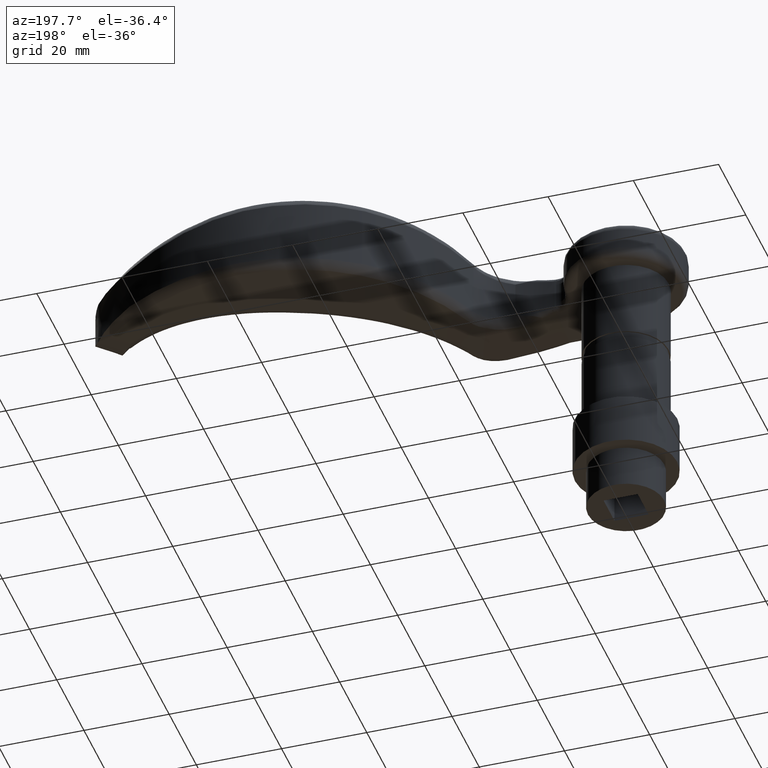
[diagram: clean part render]
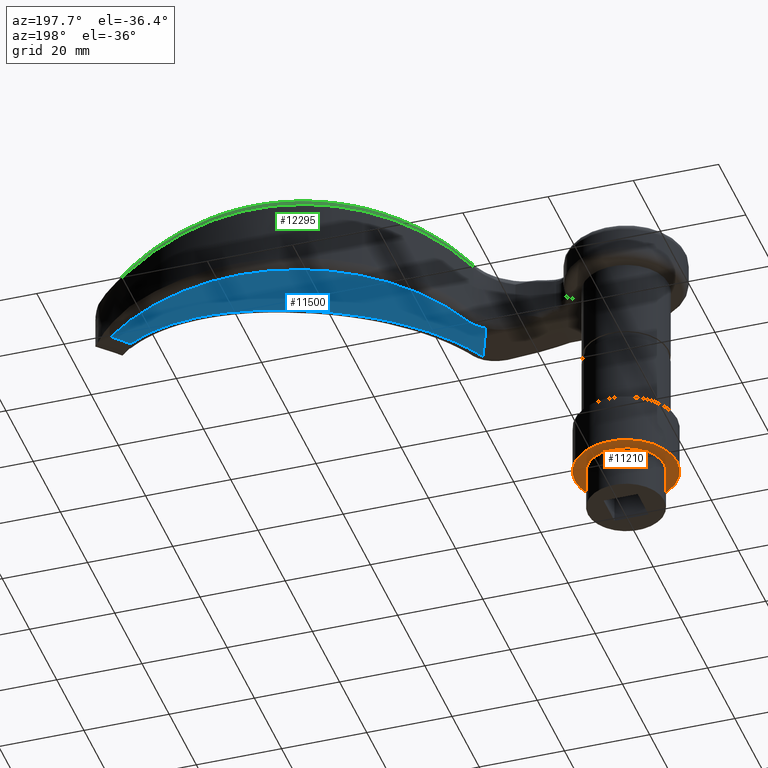
[diagram: same view with three faces highlighted in distinct colors, each labeled with its STEP entity id]
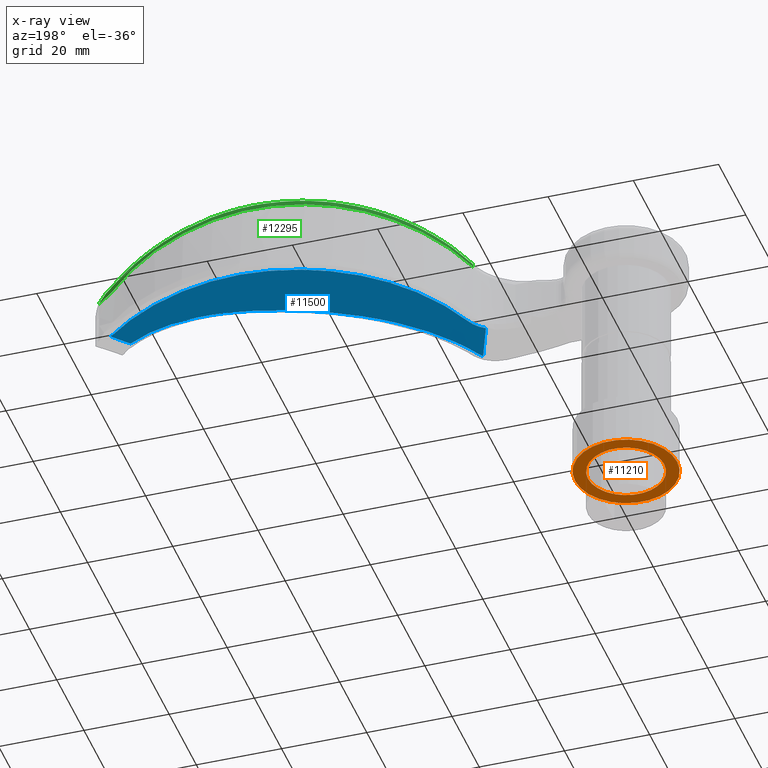
[diagram: x-ray of the same camera — body ghosted, the three highlighted faces saturated]
A machine part, auxiliary view with three faces highlighted in distinct colors.
The next image is the same camera in x-ray (body ghosted, the three faces saturated) — at least one of them is partly hidden behind the body in this view.
Their STEP definitions:

[orange] entity #11210 — the highlighted planar face has unit normal (0, 0, -1).
#1031 = CARTESIAN_POINT ( 'NONE',  ( 0.000000000000000000, 0.000000000000000000, -49.99999999999999289 ) ) ;
#1483 = AXIS2_PLACEMENT_3D ( 'NONE', #8127, #2448, #11358 ) ;
#1785 = EDGE_CURVE ( 'NONE', #1965, #1965, #8510, .T. ) ;
#1965 = VERTEX_POINT ( 'NONE', #5783 ) ;
#2448 = DIRECTION ( 'NONE',  ( 0.000000000000000000, 0.000000000000000000, -1.000000000000000000 ) ) ;
#2647 = EDGE_LOOP ( 'NONE', ( #12379 ) ) ;
#2908 = AXIS2_PLACEMENT_3D ( 'NONE', #3174, #9844, #4185 ) ;
#3174 = CARTESIAN_POINT ( 'NONE',  ( 0.000000000000000000, 0.000000000000000000, -49.99999999999999289 ) ) ;
#3524 = CIRCLE ( 'NONE', #9095, 12.00000000000000178 ) ;
#4185 = DIRECTION ( 'NONE',  ( -1.000000000000000000, 0.000000000000000000, 0.000000000000000000 ) ) ;
#4411 = DIRECTION ( 'NONE',  ( 0.000000000000000000, 0.000000000000000000, -1.000000000000000000 ) ) ;
#4593 = EDGE_LOOP ( 'NONE', ( #12224 ) ) ;
#5783 = CARTESIAN_POINT ( 'NONE',  ( -8.949999999999999289, 0.000000000000000000, -49.99999999999999289 ) ) ;
#5953 = FACE_BOUND ( 'NONE', #2647, .T. ) ;
#6595 = DIRECTION ( 'NONE',  ( -1.000000000000000000, 0.000000000000000000, 0.000000000000000000 ) ) ;
#8127 = CARTESIAN_POINT ( 'NONE',  ( 0.000000000000000000, 0.000000000000000000, -49.99999999999999289 ) ) ;
#8510 = CIRCLE ( 'NONE', #2908, 8.949999999999999289 ) ;
#9095 = AXIS2_PLACEMENT_3D ( 'NONE', #1031, #4411, #6595 ) ;
#9266 = VERTEX_POINT ( 'NONE', #10387 ) ;
#9844 = DIRECTION ( 'NONE',  ( -0.000000000000000000, -0.000000000000000000, 1.000000000000000000 ) ) ;
#10387 = CARTESIAN_POINT ( 'NONE',  ( -12.00000000000000178, 0.000000000000000000, -49.99999999999999289 ) ) ;
#10585 = EDGE_CURVE ( 'NONE', #9266, #9266, #3524, .T. ) ;
#11210 = ADVANCED_FACE ( 'NONE', ( #5953, #13789 ), #11564, .T. ) ;
#11358 = DIRECTION ( 'NONE',  ( -1.000000000000000000, 0.000000000000000000, -0.000000000000000000 ) ) ;
#11564 = PLANE ( 'NONE',  #1483 ) ;
#12224 = ORIENTED_EDGE ( 'NONE', *, *, #10585, .T. ) ;
#12379 = ORIENTED_EDGE ( 'NONE', *, *, #1785, .T. ) ;
#13789 = FACE_OUTER_BOUND ( 'NONE', #4593, .T. ) ;

[blue] entity #11500 — the highlighted face is a freeform B-spline surface patch.
#60 = CARTESIAN_POINT ( 'NONE',  ( 53.80143678603266011, 33.28677804258871475, -5.783616058190851561 ) ) ;
#112 = CARTESIAN_POINT ( 'NONE',  ( 106.8857709191473191, 23.35235438731543667, -3.071298534846667483 ) ) ;
#174 = CARTESIAN_POINT ( 'NONE',  ( 36.78898638079696326, -7.238713532125136574, -4.152122600166641142 ) ) ;
#175 = CARTESIAN_POINT ( 'NONE',  ( 36.22625459383385760, -8.360639240379404313, -4.005141152307341024 ) ) ;
#202 = CARTESIAN_POINT ( 'NONE',  ( 33.02625248942131009, -1.468245048221411109, -3.084107936373133629 ) ) ;
#252 = CARTESIAN_POINT ( 'NONE',  ( 35.25791039069285659, -6.498116262911771912, -3.726649200762891745 ) ) ;
#254 = B_SPLINE_CURVE_WITH_KNOTS ( 'NONE', 3,
 ( #11949, #5313, #973, #7575, #5362, #5264 ),
 .UNSPECIFIED., .F., .F.,
 ( 4, 2, 4 ),
 ( -5.999999997828032286E-08, 0.002754433982285785839, 0.005508927964571550505 ),
 .UNSPECIFIED. ) ;
#266 = B_SPLINE_CURVE_WITH_KNOTS ( 'NONE', 3,
 ( #10453, #12683, #446, #11530, #8195, #492, #1557 ),
 .UNSPECIFIED., .F., .F.,
 ( 4, 3, 4 ),
 ( 0.000000000000000000, 8.579646741729051446E-06, 8.639644981565973704E-06 ),
 .UNSPECIFIED. ) ;
#282 = CARTESIAN_POINT ( 'NONE',  ( 110.6817947447659662, 17.64943600805470680, -2.107710271270538449 ) ) ;
#305 = CARTESIAN_POINT ( 'NONE',  ( 31.96918174544076408, 1.190719821539620416, -2.778177117272663477 ) ) ;
#337 = VERTEX_POINT ( 'NONE', #8194 ) ;
#356 = CARTESIAN_POINT ( 'NONE',  ( 90.09007446574757694, 41.18344798747980917, -3.932655828050937163 ) ) ;
#446 = CARTESIAN_POINT ( 'NONE',  ( 32.83403778645849513, 0.2053755358448031143, -3.017371953356337233 ) ) ;
#460 = CARTESIAN_POINT ( 'NONE',  ( 52.03969117324987792, 38.72738669489172736, -5.121333597759719858 ) ) ;
#492 = CARTESIAN_POINT ( 'NONE',  ( 32.83599184510649138, 0.2074585996096204310, -3.017873763770368978 ) ) ;
#493 = CARTESIAN_POINT ( 'NONE',  ( 109.2305003822540215, 18.80847725400183990, -2.358236010258814019 ) ) ;
#506 = CARTESIAN_POINT ( 'NONE',  ( 32.51023172689635032, -0.7691908008999573942, -2.940404765013902466 ) ) ;
#609 = CARTESIAN_POINT ( 'NONE',  ( 67.64100593253282057, 37.07064051255001402, -4.868902237831512103 ) ) ;
#635 = CARTESIAN_POINT ( 'NONE',  ( 82.81248540371996114, 26.57157411399421321, -5.746426720361963447 ) ) ;
#654 = CARTESIAN_POINT ( 'NONE',  ( 53.59928969019259881, 30.66711142865046114, -4.857236047301258353 ) ) ;
#793 = CARTESIAN_POINT ( 'NONE',  ( 32.83334285139193298, 0.1979408911781884439, -3.017257620139870422 ) ) ;
#847 = CARTESIAN_POINT ( 'NONE',  ( 95.86003751288018293, 33.64888057109101993, -3.405240683676297397 ) ) ;
#853 = ORIENTED_EDGE ( 'NONE', *, *, #3928, .T. ) ;
#871 = CARTESIAN_POINT ( 'NONE',  ( 69.92447327937900070, 23.99592800055272335, -6.444150640309663558 ) ) ;
#946 = CARTESIAN_POINT ( 'NONE',  ( 76.88473112048400537, 38.15767147261603043, -4.588826857023864392 ) ) ;
#973 = CARTESIAN_POINT ( 'NONE',  ( 34.01597870232341592, 1.592635090289161504, -3.310468908854307557 ) ) ;
#991 = CARTESIAN_POINT ( 'NONE',  ( 94.91523008939196870, 34.07180909494451271, -3.481710947599037542 ) ) ;
#1184 = CARTESIAN_POINT ( 'NONE',  ( 32.93744703573587884, -1.841263790390742727, -3.063661904559700666 ) ) ;
#1235 = CARTESIAN_POINT ( 'NONE',  ( 35.35010379607246733, -6.146360025445319231, -3.749999999999996003 ) ) ;
#1285 = CARTESIAN_POINT ( 'NONE',  ( 91.00962121949832806, 29.90232913247080404, -5.267597069692061318 ) ) ;
#1311 = CARTESIAN_POINT ( 'NONE',  ( 36.63140000772155958, -7.629030676129945121, -4.113046157183760876 ) ) ;
#1332 = CARTESIAN_POINT ( 'NONE',  ( 33.20386339679215837, -0.7222075638827479827, -3.124999999999999112 ) ) ;
#1378 = CARTESIAN_POINT ( 'NONE',  ( 115.2200157495127968, 9.141290610166548092, -1.000000000000001776 ) ) ;
#1408 = EDGE_CURVE ( 'NONE', #8558, #11851, #8845, .T. ) ;
#1427 = CARTESIAN_POINT ( 'NONE',  ( 32.59835959024293572, -0.3919195577900497773, -2.960269843342601792 ) ) ;
#1525 = CARTESIAN_POINT ( 'NONE',  ( 122.8133221852572490, 15.23357345669758089, -0.4591552877152794698 ) ) ;
#1557 = CARTESIAN_POINT ( 'NONE',  ( 32.83600543149478312, 0.2074728617780234041, -3.017877224570012284 ) ) ;
#1620 = B_SPLINE_CURVE_WITH_KNOTS ( 'NONE', 3,
 ( #13302, #10005, #13209, #2271 ),
 .UNSPECIFIED., .F., .F.,
 ( 4, 4 ),
 ( 0.000000000000000000, 1.000000000000000000 ),
 .UNSPECIFIED. ) ;
#1625 = CARTESIAN_POINT ( 'NONE',  ( 32.14344480139850901, 1.957768144532834764, -2.816198794718757448 ) ) ;
#1712 = CARTESIAN_POINT ( 'NONE',  ( 92.15003221865246985, 25.98236045336460975, -4.802269132641948879 ) ) ;
#1761 = CARTESIAN_POINT ( 'NONE',  ( 80.94577242866236588, 26.43489273890062918, -5.893896870114044617 ) ) ;
#1780 = CARTESIAN_POINT ( 'NONE',  ( 57.10706576687962155, 32.92394151293849092, -4.915699885130181634 ) ) ;
#1810 = CARTESIAN_POINT ( 'NONE',  ( 88.41354257798671767, 26.48947862761229999, -5.221447245400153037 ) ) ;
#1855 = CARTESIAN_POINT ( 'NONE',  ( 58.87254699947988001, 18.80011899213601367, -6.436302294787502376 ) ) ;
#1896 = CARTESIAN_POINT ( 'NONE',  ( 38.20539922822035805, -3.730477340450205403, -4.503348247361894430 ) ) ;
#2035 = CARTESIAN_POINT ( 'NONE',  ( 61.33752133495252679, 20.22260993743990198, -6.487013208974606648 ) ) ;
#2271 = CARTESIAN_POINT ( 'NONE',  ( 110.6817947447659662, 17.64943600805470680, -2.107710271270538449 ) ) ;
#2349 = CARTESIAN_POINT ( 'NONE',  ( 37.20960012413120666, -12.56199368529859761, -4.296233300017661350 ) ) ;
#2389 = CARTESIAN_POINT ( 'NONE',  ( 118.7299448767052183, 11.95738675946375018, -0.7500000000000013323 ) ) ;
#2392 = CARTESIAN_POINT ( 'NONE',  ( 32.83600543149478312, 0.2074728617780234041, -3.017877224570012284 ) ) ;
#2481 = VERTEX_POINT ( 'NONE', #175 ) ;
#2483 = CARTESIAN_POINT ( 'NONE',  ( 35.16571698531324586, -6.849872500378224593, -3.703298401525787931 ) ) ;
#2536 = CARTESIAN_POINT ( 'NONE',  ( 32.35383497324438196, 1.426053072498478125, -2.877465863145838298 ) ) ;
#2603 = ORIENTED_EDGE ( 'NONE', *, *, #3797, .T. ) ;
#2632 = CARTESIAN_POINT ( 'NONE',  ( 89.93983997539037034, 43.02654420301013261, -3.714554664323579836 ) ) ;
#2633 = VERTEX_POINT ( 'NONE', #282 ) ;
#2639 = ORIENTED_EDGE ( 'NONE', *, *, #7906, .T. ) ;
#2718 = CARTESIAN_POINT ( 'NONE',  ( 93.99160467665649321, 25.61991320077343559, -4.580432055818978831 ) ) ;
#2782 = CARTESIAN_POINT ( 'NONE',  ( 46.69233498691474438, 24.46691643484684420, -4.610872301467924039 ) ) ;
#2886 = CARTESIAN_POINT ( 'NONE',  ( 56.21042264975761071, 32.39521426354608735, -4.904574657597331466 ) ) ;
#2953 = CARTESIAN_POINT ( 'NONE',  ( 66.41980534950661763, 22.67756729482584177, -6.504959886034667349 ) ) ;
#2973 = CARTESIAN_POINT ( 'NONE',  ( 38.66160521345202028, 12.50208988239909225, -4.019395635703052250 ) ) ;
#3001 = CARTESIAN_POINT ( 'NONE',  ( 74.43819283594986302, 25.28047535925287193, -6.279446090189373386 ) ) ;
#3102 = LINE ( 'NONE', #9669, #8320 ) ;
#3214 = CARTESIAN_POINT ( 'NONE',  ( 92.05422204781072537, 35.25743144131701712, -3.704884203771570128 ) ) ;
#3435 = CARTESIAN_POINT ( 'NONE',  ( 114.3319705602834944, 20.75617849578499730, -1.499867853793391603 ) ) ;
#3451 = CARTESIAN_POINT ( 'NONE',  ( 58.34444256807924489, 19.25710407267751023, -7.491440970741083838 ) ) ;
#3495 = CARTESIAN_POINT ( 'NONE',  ( 37.63681543297075649, -13.63406667478938061, -4.419490439563459105 ) ) ;
#3549 = CARTESIAN_POINT ( 'NONE',  ( 37.92559227520862208, -12.65534297932039287, -4.499999999999988454 ) ) ;
#3598 = CARTESIAN_POINT ( 'NONE',  ( 36.35516950645208567, -10.41784770631701917, -4.049719020926071167 ) ) ;
#3648 = CARTESIAN_POINT ( 'NONE',  ( 32.56422514509024779, 0.8943380004641217074, -2.938732931572919149 ) ) ;
#3697 = CARTESIAN_POINT ( 'NONE',  ( 32.68648745358952823, -0.01464831468014226798, -2.980134921671300674 ) ) ;
#3741 = CARTESIAN_POINT ( 'NONE',  ( 109.4134132785063258, 32.37160194551164238, -2.076643797948725112 ) ) ;
#3785 = CARTESIAN_POINT ( 'NONE',  ( 32.30083789041818676, -0.2437286472523003955, -2.879991936192474178 ) ) ;
#3797 = EDGE_CURVE ( 'NONE', #2481, #10124, #3102, .T. ) ;
#3828 = CARTESIAN_POINT ( 'NONE',  ( 52.79187994557793218, 36.40448336923565620, -5.404099410957467597 ) ) ;
#3928 = EDGE_CURVE ( 'NONE', #11851, #2633, #1620, .T. ) ;
#3937 = CARTESIAN_POINT ( 'NONE',  ( 68.65991888955120714, 37.29737204167058451, -4.848458718786269550 ) ) ;
#4032 = CARTESIAN_POINT ( 'NONE',  ( 35.60722667986118495, 4.837881200208356880, -3.628822409214147893 ) ) ;
#4080 = CARTESIAN_POINT ( 'NONE',  ( 45.33416264009015606, 22.89525097339399906, -4.538180475353335019 ) ) ;
#4103 = CARTESIAN_POINT ( 'NONE',  ( 48.59539291550238715, 10.67180443052535921, -5.873933352852524159 ) ) ;
#4202 = CARTESIAN_POINT ( 'NONE',  ( 43.08946663943556388, 4.224462778923848028, -5.285543816306450537 ) ) ;
#4223 = CARTESIAN_POINT ( 'NONE',  ( 114.3319705602834944, 20.75617849578499730, -1.499867853793391603 ) ) ;
#4230 = EDGE_CURVE ( 'NONE', #10124, #8360, #6254, .T. ) ;
#4559 = CARTESIAN_POINT ( 'NONE',  ( 37.49634419535258445, -11.57051248700787838, -4.374999999999989342 ) ) ;
#4654 = CARTESIAN_POINT ( 'NONE',  ( 56.83010730739712812, 23.93366206264789753, -6.922165999891011445 ) ) ;
#4703 = CARTESIAN_POINT ( 'NONE',  ( 122.5265980945773947, 15.00352818272927458, -0.4795776438576399014 ) ) ;
#4853 = CARTESIAN_POINT ( 'NONE',  ( 32.26637133347627184, 1.044613217130771154, -2.858170277887574162 ) ) ;
#4903 = CARTESIAN_POINT ( 'NONE',  ( 109.1767673512789969, 31.52719126636645441, -2.169766542000219456 ) ) ;
#4936 = CARTESIAN_POINT ( 'NONE',  ( 77.20884679005114037, 25.88037631909451264, -6.136673357308034760 ) ) ;
#5077 = CARTESIAN_POINT ( 'NONE',  ( 104.4580236033610987, 21.76052910357667258, -3.122694983149325587 ) ) ;
#5097 = CARTESIAN_POINT ( 'NONE',  ( 70.71119899131956288, 37.68121899483785597, -4.800250517720559884 ) ) ;
#5119 = CARTESIAN_POINT ( 'NONE',  ( 64.70050768562950338, 21.92807343575009682, -6.513923350285080183 ) ) ;
#5143 = CARTESIAN_POINT ( 'NONE',  ( 44.67631860869868632, 22.08092161014304367, -4.499513868876293898 ) ) ;
#5163 = CARTESIAN_POINT ( 'NONE',  ( 47.93839000795202310, 9.998597247877999195, -5.815882029487449145 ) ) ;
#5210 = VERTEX_POINT ( 'NONE', #2392 ) ;
#5236 = CARTESIAN_POINT ( 'NONE',  ( 81.02189849522328302, 37.90943360432523690, -4.395880785970049054 ) ) ;
#5264 = CARTESIAN_POINT ( 'NONE',  ( 35.60722667986118495, 4.837881200208356880, -3.628822409214147893 ) ) ;
#5310 = CARTESIAN_POINT ( 'NONE',  ( 46.65588576176234881, 8.614259345675163715, -5.693500468732571207 ) ) ;
#5313 = CARTESIAN_POINT ( 'NONE',  ( 33.45958809378923604, 0.8620709966575841321, -3.178102969613747497 ) ) ;
#5362 = CARTESIAN_POINT ( 'NONE',  ( 35.32172995282618899, 3.964269219822970758, -3.584844973049429839 ) ) ;
#5417 = B_SPLINE_CURVE_WITH_KNOTS ( 'NONE', 3,
 ( #10604, #493, #12825, #10556, #5077, #10647, #7238, #8244, #6201, #9381, #2718, #1712, #13936, #1810, #11719, #635, #1761, #10506, #4936, #7332, #3001, #11899, #871, #2953, #5119, #9618, #2035, #8529, #1855, #10785, #9662, #4103, #5163, #5310, #7573, #12919, #4202, #13108, #1896, #11807 ),
 .UNSPECIFIED., .F., .F.,
 ( 4, 2, 2, 2, 2, 2, 2, 2, 2, 2, 2, 2, 2, 2, 2, 2, 2, 2, 2, 4 ),
 ( 0.009696983768199957804, 0.01539871875246150851, 0.01824958624459229947, 0.02110045373672309044, 0.02680218872098467237, 0.02965305621311546333, 0.03250392370524626123, 0.03820565868950788480, 0.04390739367376951530, 0.04675826116590033055, 0.04960912865803113192, 0.05531086364229280405, 0.06101259862655446231, 0.06386346611868530532, 0.06671433361081613445, 0.07811780357933947871, 0.08096867107147033560, 0.08381953856360117860, 0.08952127354786285074, 0.1009247435163861950 ),
 .UNSPECIFIED. ) ;
#5433 = CARTESIAN_POINT ( 'NONE',  ( 101.3796976931843972, 30.78692428496212230, -2.923902762699083002 ) ) ;
#5581 = CARTESIAN_POINT ( 'NONE',  ( 33.79187765341488614, -3.985409769372306954, -3.310176183651289072 ) ) ;
#5670 = CARTESIAN_POINT ( 'NONE',  ( 42.82352495573650231, 6.849396044384847393, -5.838341323562522334 ) ) ;
#5719 = CARTESIAN_POINT ( 'NONE',  ( 106.4029545928099765, 21.62954737854245835, -3.261292006140154687 ) ) ;
#5774 = CARTESIAN_POINT ( 'NONE',  ( 36.54362185924431827, -9.739850237027573243, -4.099906340308685060 ) ) ;
#5913 = CARTESIAN_POINT ( 'NONE',  ( 35.60722667986118495, 4.837881200208356880, -3.628822409214147893 ) ) ;
#6020 = CARTESIAN_POINT ( 'NONE',  ( 122.2398740038975404, 14.77348290876096826, -0.5000000000000003331 ) ) ;
#6104 = ORIENTED_EDGE ( 'NONE', *, *, #10795, .T. ) ;
#6127 = CARTESIAN_POINT ( 'NONE',  ( 47.39471340045805192, 25.22719035442031910, -4.645043121569684352 ) ) ;
#6201 = CARTESIAN_POINT ( 'NONE',  ( 97.60124825282521499, 24.68385373605956090, -4.117742581617484632 ) ) ;
#6217 = CARTESIAN_POINT ( 'NONE',  ( 71.73781542382558030, 37.82751161678908858, -4.771620745043498424 ) ) ;
#6254 = B_SPLINE_CURVE_WITH_KNOTS ( 'NONE', 3,
 ( #10152, #13070, #9869, #10943, #793, #6403, #9678 ),
 .UNSPECIFIED., .F., .F.,
 ( 4, 3, 4 ),
 ( 0.000000000000000000, 3.416383952001571158E-05, 4.107111026423688257E-05 ),
 .UNSPECIFIED. ) ;
#6403 = CARTESIAN_POINT ( 'NONE',  ( 32.83179132346055695, 0.1996371322809294413, -3.016827146995304521 ) ) ;
#6523 = EDGE_LOOP ( 'NONE', ( #13307, #853, #7032, #2639, #2603, #13869, #6104, #10547 ) ) ;
#6715 = CARTESIAN_POINT ( 'NONE',  ( 33.97219892214107517, -3.256382288795947044, -3.353392061217092213 ) ) ;
#6760 = CARTESIAN_POINT ( 'NONE',  ( 36.63784803564043813, -9.400851502382849390, -4.124999999999992006 ) ) ;
#6813 = CARTESIAN_POINT ( 'NONE',  ( 37.73307438038337835, -13.30782544296638470, -4.446326959708969184 ) ) ;
#6868 = CARTESIAN_POINT ( 'NONE',  ( 90.39659005033109906, 37.42307503581014316, -4.377636241931310401 ) ) ;
#6909 = CARTESIAN_POINT ( 'NONE',  ( 55.31577204671491188, 28.61022005261833101, -6.352891029040928395 ) ) ;
#6959 = CARTESIAN_POINT ( 'NONE',  ( 52.28710152535055755, 37.96333603255911981, -5.214341087340775616 ) ) ;
#7014 = CARTESIAN_POINT ( 'NONE',  ( 32.05631327341964010, 1.574243983036227590, -2.797187955995710684 ) ) ;
#7032 = ORIENTED_EDGE ( 'NONE', *, *, #7175, .T. ) ;
#7151 = CARTESIAN_POINT ( 'NONE',  ( 109.2950903148926614, 31.94939660593904662, -2.123205169974472284 ) ) ;
#7175 = EDGE_CURVE ( 'NONE', #2633, #337, #5417, .T. ) ;
#7238 = CARTESIAN_POINT ( 'NONE',  ( 101.9349133417240694, 22.99744898314751040, -3.502717832950331012 ) ) ;
#7258 = CARTESIAN_POINT ( 'NONE',  ( 51.12155820954506424, 28.79275347070801772, -4.794233562413057648 ) ) ;
#7303 = CARTESIAN_POINT ( 'NONE',  ( 42.79551835464007326, 19.59545332655907757, -4.379241054489350304 ) ) ;
#7332 = CARTESIAN_POINT ( 'NONE',  ( 75.35603673094371402, 25.49607030500010652, -6.236041312840992390 ) ) ;
#7553 = CARTESIAN_POINT ( 'NONE',  ( 97.73254627680240958, 32.74951548267106460, -3.248279126680726936 ) ) ;
#7573 = CARTESIAN_POINT ( 'NONE',  ( 46.02879509101838806, 7.901101706868722374, -5.628979497381140007 ) ) ;
#7575 = CARTESIAN_POINT ( 'NONE',  ( 34.94403133764540570, 3.141653873933818453, -3.513002119050905314 ) ) ;
#7597 = CARTESIAN_POINT ( 'NONE',  ( 74.82294518869751698, 38.11255213007511600, -4.669934792334732521 ) ) ;
#7631 = CARTESIAN_POINT ( 'NONE',  ( 32.83018124192010134, 0.2012691858159053604, -3.016381669256355202 ) ) ;
#7637 = CARTESIAN_POINT ( 'NONE',  ( 77.91713597379876433, 38.13675652943061323, -4.544330111153589868 ) ) ;
#7827 = CARTESIAN_POINT ( 'NONE',  ( 120.4849094403013510, 13.36543483411236721, -0.6250000000000007772 ) ) ;
#7881 = CARTESIAN_POINT ( 'NONE',  ( 116.9749803131089720, 10.54933868481515979, -0.8750000000000011102 ) ) ;
#7906 = EDGE_CURVE ( 'NONE', #337, #2481, #8684, .T. ) ;
#7925 = CARTESIAN_POINT ( 'NONE',  ( 37.40076283827879422, -11.90100621977145146, -4.348744433339213344 ) ) ;
#7965 = CARTESIAN_POINT ( 'NONE',  ( 33.11505794310673423, -1.095226306052079712, -3.104553968186566593 ) ) ;
#8016 = CARTESIAN_POINT ( 'NONE',  ( 36.44939568284820552, -10.07884897167229532, -4.074812680617378113 ) ) ;
#8155 = CARTESIAN_POINT ( 'NONE',  ( 37.45747894330423833, 22.03753626756684625, -4.030033264666567305 ) ) ;
#8194 = CARTESIAN_POINT ( 'NONE',  ( 36.78898638079696326, -7.238713532125136574, -4.152122600166641142 ) ) ;
#8195 = CARTESIAN_POINT ( 'NONE',  ( 32.83597847724278296, 0.2074441308511517923, -3.017870302990708797 ) ) ;
#8211 = CARTESIAN_POINT ( 'NONE',  ( 90.03999630229516526, 41.79781339265658602, -3.859955440141817906 ) ) ;
#8244 = CARTESIAN_POINT ( 'NONE',  ( 99.35952071567211874, 24.08163074553826988, -3.875494769054966149 ) ) ;
#8258 = CARTESIAN_POINT ( 'NONE',  ( 31.88205021746189161, 0.8071956600430132411, -2.759166278549616713 ) ) ;
#8320 = VECTOR ( 'NONE', #13058, 1000.000000000000114 ) ;
#8360 = VERTEX_POINT ( 'NONE', #7631 ) ;
#8389 = FACE_OUTER_BOUND ( 'NONE', #6523, .T. ) ;
#8503 = CARTESIAN_POINT ( 'NONE',  ( 61.72482915841520423, 35.22653079301506551, -4.938097482753387446 ) ) ;
#8529 = CARTESIAN_POINT ( 'NONE',  ( 59.68583695676876744, 19.28850215777593746, -6.456396124864980379 ) ) ;
#8558 = VERTEX_POINT ( 'NONE', #5913 ) ;
#8605 = CARTESIAN_POINT ( 'NONE',  ( 111.3776883695439324, 23.64523651701482265, -1.877683441858863933 ) ) ;
#8650 = CARTESIAN_POINT ( 'NONE',  ( 84.12558138673436758, 37.48289597577587529, -4.229775510023222829 ) ) ;
#8684 = B_SPLINE_CURVE_WITH_KNOTS ( 'NONE', 3,
 ( #174, #1311, #11307, #9324 ),
 .UNSPECIFIED., .F., .F.,
 ( 4, 4 ),
 ( 0.000000000000000000, 0.001263720079789073213 ),
 .UNSPECIFIED. ) ;
#8696 = CARTESIAN_POINT ( 'NONE',  ( 103.1310035324197543, 29.71080397233401271, -2.756291617961136975 ) ) ;
#8845 = B_SPLINE_CURVE_WITH_KNOTS ( 'NONE', 3,
 ( #4032, #9642, #11825, #2973, #13962, #12937, #7303, #5143, #4080, #2782, #6127, #9503, #7258, #654, #10624, #2886, #1780, #9547, #8503, #14055, #10674, #11786, #609, #3937, #11738, #5097, #6217, #9784, #7597, #946, #7637, #11925, #5236, #8650, #14248, #10907, #3214, #991, #847, #7553, #13179, #5433, #8696, #13078, #8605, #4223 ),
 .UNSPECIFIED., .F., .F.,
 ( 4, 2, 2, 2, 2, 2, 2, 2, 2, 2, 2, 2, 2, 2, 2, 2, 2, 2, 2, 2, 2, 2, 4 ),
 ( 0.000000000000000000, 0.006158499908709196002, 0.01231699981741839200, 0.01847549972612758801, 0.02155474968048218254, 0.02463399963483677360, 0.03079249954354598348, 0.03387174949790058148, 0.03695099945225518989, 0.04310949936096439977, 0.04618874931531901512, 0.04772837429249632279, 0.04926799926967363741, 0.05234724922402825970, 0.05542649917838287504, 0.05850574913273749733, 0.06158499908709211962, 0.06774349899580134338, 0.07390199890451057407, 0.07698124885886520330, 0.08006049881321980477, 0.08621899872192904934, 0.09853599853934758013 ),
 .UNSPECIFIED. ) ;
#9040 = CARTESIAN_POINT ( 'NONE',  ( 90.70310563491472067, 33.66270208414049847, -4.822616655811683195 ) ) ;
#9097 = CARTESIAN_POINT ( 'NONE',  ( 91.31613680408186440, 26.14195618080115224, -5.712577483572432335 ) ) ;
#9146 = CARTESIAN_POINT ( 'NONE',  ( 115.8050039373781885, 9.610639968382749032, -0.9583333333333350357 ) ) ;
#9190 = CARTESIAN_POINT ( 'NONE',  ( 32.47642939353289648, 0.5149824512253143860, -2.919152599779437640 ) ) ;
#9249 = CARTESIAN_POINT ( 'NONE',  ( 51.79228082114919829, 39.49143735722433490, -5.028326108178663212 ) ) ;
#9299 = CARTESIAN_POINT ( 'NONE',  ( 36.99967841935767154, 23.33330200193386261, -3.875758706658422259 ) ) ;
#9324 = CARTESIAN_POINT ( 'NONE',  ( 36.22625459383385760, -8.360639240379404313, -4.005141152307341024 ) ) ;
#9345 = CARTESIAN_POINT ( 'NONE',  ( 32.77461531693611363, 0.3626229284297652344, -2.999999999999999556 ) ) ;
#9376 = B_SPLINE_SURFACE_WITH_KNOTS ( 'NONE', 3, 3, ( 
 ( #3495, #6813, #13552, #3549, #11203, #3451, #9097, #11286, #1378 ),
 ( #2349, #12309, #7925, #4559, #5670, #10272, #13409, #5719, #9146 ),
 ( #3598, #8016, #5774, #6760, #12354, #4654, #1285, #112, #7881 ),
 ( #11336, #2483, #252, #1235, #12270, #6909, #9040, #10123, #2389 ),
 ( #5581, #13364, #6715, #13462, #13507, #60, #6868, #10220, #7827 ),
 ( #1184, #202, #7965, #1332, #11542, #3828, #10465, #10328, #12648 ),
 ( #506, #1427, #3697, #9345, #11441, #6959, #356, #10418, #6020 ),
 ( #3785, #11594, #9190, #3648, #8155, #460, #8211, #4903, #4703 ),
 ( #12501, #13807, #4853, #2536, #13750, #9249, #12696, #7151, #1525 ),
 ( #8258, #305, #7014, #1625, #9299, #13653, #2632, #3741, #9392 ) ),
 .UNSPECIFIED., .F., .F., .F.,
 ( 4, 1, 1, 1, 3, 4 ),
 ( 4, 3, 2, 4 ),
 ( 0.000000000000000000, 0.05745119557558379247, 0.1149023911511676127, 0.1723535867267514399, 0.2298047823023352532, 0.2579637129467104439 ),
 ( -0.01000000000000000021, 0.000000000000000000, 0.5573451689194326431, 1.000000000000000000 ),
 .UNSPECIFIED. ) ;
#9381 = CARTESIAN_POINT ( 'NONE',  ( 94.90179702498632253, 25.40832950094387854, -4.466585664926492782 ) ) ;
#9392 = CARTESIAN_POINT ( 'NONE',  ( 123.1000462759371032, 15.46361873066588721, -0.4387329315729190382 ) ) ;
#9503 = CARTESIAN_POINT ( 'NONE',  ( 49.57360645348841643, 27.42929282095631294, -4.740320128265743449 ) ) ;
#9547 = CARTESIAN_POINT ( 'NONE',  ( 59.84091646634160355, 34.39572605229672320, -4.937974523318395370 ) ) ;
#9618 = CARTESIAN_POINT ( 'NONE',  ( 62.17195618700328907, 20.66621202926172884, -6.497481714535392250 ) ) ;
#9642 = CARTESIAN_POINT ( 'NONE',  ( 36.25366239575069471, 6.815956367006394068, -3.728398280802470488 ) ) ;
#9662 = CARTESIAN_POINT ( 'NONE',  ( 51.95779284407835519, 13.94476164470810353, -6.147608251013076952 ) ) ;
#9669 = CARTESIAN_POINT ( 'NONE',  ( 32.77461531693612073, 0.3626229284297652899, -3.000000000000000000 ) ) ;
#9678 = CARTESIAN_POINT ( 'NONE',  ( 32.83018124192010134, 0.2012691858159053604, -3.016381669256355202 ) ) ;
#9784 = CARTESIAN_POINT ( 'NONE',  ( 73.79366299506720850, 38.04383194735702034, -4.706447985621699637 ) ) ;
#9869 = CARTESIAN_POINT ( 'NONE',  ( 32.84208069896609317, 0.1876418711909769166, -3.019689146069714614 ) ) ;
#10005 = CARTESIAN_POINT ( 'NONE',  ( 113.0124029632087286, 19.63937159573293201, -1.701493094748065316 ) ) ;
#10123 = CARTESIAN_POINT ( 'NONE',  ( 107.6099954086533614, 25.93656490047492014, -2.786308327906431792 ) ) ;
#10124 = VERTEX_POINT ( 'NONE', #13425 ) ;
#10152 = CARTESIAN_POINT ( 'NONE',  ( 32.85199822101468925, 0.1670545895887861343, -3.022534435129133445 ) ) ;
#10220 = CARTESIAN_POINT ( 'NONE',  ( 108.3342198981593185, 28.52077541363438229, -2.501318120966199654 ) ) ;
#10272 = CARTESIAN_POINT ( 'NONE',  ( 57.83966414785187027, 20.81595673600097385, -7.301682647124390080 ) ) ;
#10328 = CARTESIAN_POINT ( 'NONE',  ( 108.8170362244967038, 30.24358242240736772, -2.311324649672711118 ) ) ;
#10418 = CARTESIAN_POINT ( 'NONE',  ( 109.0584443876653324, 31.10498592679385865, -2.216327914025966628 ) ) ;
#10453 = CARTESIAN_POINT ( 'NONE',  ( 32.83018124192010134, 0.2012691858159053604, -3.016381669256355202 ) ) ;
#10465 = CARTESIAN_POINT ( 'NONE',  ( 90.19224632727542712, 39.92999033692326094, -4.080982632677728539 ) ) ;
#10506 = CARTESIAN_POINT ( 'NONE',  ( 78.14573891433842334, 26.04311084980013291, -6.080205916314491255 ) ) ;
#10547 = ORIENTED_EDGE ( 'NONE', *, *, #13701, .T. ) ;
#10556 = CARTESIAN_POINT ( 'NONE',  ( 105.2863897647124816, 21.30572131805509883, -2.994100429388894646 ) ) ;
#10604 = CARTESIAN_POINT ( 'NONE',  ( 110.6817947447659662, 17.64943600805470680, -2.107710271270538449 ) ) ;
#10624 = CARTESIAN_POINT ( 'NONE',  ( 54.45124303147792943, 31.26334245234443188, -4.875249417272065067 ) ) ;
#10647 = CARTESIAN_POINT ( 'NONE',  ( 102.7830066632011921, 22.60581467393976141, -3.376879766220850509 ) ) ;
#10674 = CARTESIAN_POINT ( 'NONE',  ( 65.63039584798706016, 36.55045178334881228, -4.902298469638059153 ) ) ;
#10785 = CARTESIAN_POINT ( 'NONE',  ( 54.89270552548285309, 16.26844103829198929, -6.314199998962624960 ) ) ;
#10795 = EDGE_CURVE ( 'NONE', #8360, #5210, #266, .T. ) ;
#10907 = CARTESIAN_POINT ( 'NONE',  ( 90.11161686796597792, 35.93752809688419347, -3.845395742643519910 ) ) ;
#10943 = CARTESIAN_POINT ( 'NONE',  ( 32.83482986942632920, 0.1961881908332020752, -3.017671420320991782 ) ) ;
#11203 = CARTESIAN_POINT ( 'NONE',  ( 43.29053820577821909, 5.527554466566803271, -5.995720485370875430 ) ) ;
#11286 = CARTESIAN_POINT ( 'NONE',  ( 106.1615464296413052, 20.76814387415596741, -3.356288741786899177 ) ) ;
#11307 = CARTESIAN_POINT ( 'NONE',  ( 36.44292669726617362, -8.004224595742350346, -4.064005069008015170 ) ) ;
#11336 = CARTESIAN_POINT ( 'NONE',  ( 35.07352357993363512, -7.201628737844677275, -3.679947602288683672 ) ) ;
#11441 = CARTESIAN_POINT ( 'NONE',  ( 37.68637920527751817, 21.38965340038333807, -4.107170543670639162 ) ) ;
#11500 = ADVANCED_FACE ( 'NONE', ( #8389 ), #9376, .T. ) ;
#11530 = CARTESIAN_POINT ( 'NONE',  ( 32.83596500006503049, 0.2074297654391954737, -3.017866842188678955 ) ) ;
#11542 = CARTESIAN_POINT ( 'NONE',  ( 38.15339245531924206, 20.06781182256529661, -4.264549705478993147 ) ) ;
#11594 = CARTESIAN_POINT ( 'NONE',  ( 32.38863364197554517, 0.1356269019865069814, -2.899572267985956131 ) ) ;
#11719 = CARTESIAN_POINT ( 'NONE',  ( 86.54637205016189228, 26.59883482461095028, -5.410213731544625482 ) ) ;
#11738 = CARTESIAN_POINT ( 'NONE',  ( 69.17336289249105619, 37.40113018516619547, -4.837146573043970221 ) ) ;
#11786 = CARTESIAN_POINT ( 'NONE',  ( 67.13544971545732665, 36.94771231710645765, -4.878041696647771985 ) ) ;
#11807 = CARTESIAN_POINT ( 'NONE',  ( 36.78898638079696326, -7.238713532125136574, -4.152122600166641142 ) ) ;
#11825 = CARTESIAN_POINT ( 'NONE',  ( 36.99251960524998140, 8.745078098542972356, -3.826969694127839716 ) ) ;
#11851 = VERTEX_POINT ( 'NONE', #3435 ) ;
#11899 = CARTESIAN_POINT ( 'NONE',  ( 71.70984659677189654, 24.56478656729198562, -6.392304061970593310 ) ) ;
#11925 = CARTESIAN_POINT ( 'NONE',  ( 79.98480357463434132, 38.01277004978954466, -4.447906696099573232 ) ) ;
#11949 = CARTESIAN_POINT ( 'NONE',  ( 32.83600543149478312, 0.2074728617780234041, -3.017877224570012284 ) ) ;
#12270 = CARTESIAN_POINT ( 'NONE',  ( 40.48845870552792547, 13.45860393347507511, -5.051445514520758628 ) ) ;
#12309 = CARTESIAN_POINT ( 'NONE',  ( 37.30518148120499689, -12.23149995253502453, -4.322488866678437347 ) ) ;
#12354 = CARTESIAN_POINT ( 'NONE',  ( 41.88949845565304031, 9.493079200020931196, -5.523582999945820582 ) ) ;
#12501 = CARTESIAN_POINT ( 'NONE',  ( 32.09144405394005162, 0.2817335063953566032, -2.819579107371045890 ) ) ;
#12648 = CARTESIAN_POINT ( 'NONE',  ( 121.6548858160321629, 14.30413355054476909, -0.5416666666666672958 ) ) ;
#12683 = CARTESIAN_POINT ( 'NONE',  ( 32.83210986682871635, 0.2033220090601103591, -3.016876895626818822 ) ) ;
#12696 = CARTESIAN_POINT ( 'NONE',  ( 89.98991813884276780, 42.41217879783335576, -3.787255052232698649 ) ) ;
#12825 = CARTESIAN_POINT ( 'NONE',  ( 107.7012876198340194, 19.86872797698913118, -2.611264429857814484 ) ) ;
#12919 = CARTESIAN_POINT ( 'NONE',  ( 44.21431250981031980, 5.725826805266768460, -5.428554411587773743 ) ) ;
#12937 = CARTESIAN_POINT ( 'NONE',  ( 41.65879833647561981, 17.87665722486815412, -4.293175026771280933 ) ) ;
#13058 = DIRECTION ( 'NONE',  ( -0.3658331100885976461, 0.9245630476779993501, 0.1065331236342645094 ) ) ;
#13070 = CARTESIAN_POINT ( 'NONE',  ( 32.84783213312660877, 0.1775834641178573592, -3.021321241615990250 ) ) ;
#13078 = CARTESIAN_POINT ( 'NONE',  ( 108.2143875639390984, 26.25331900657816320, -2.240002294486535206 ) ) ;
#13108 = CARTESIAN_POINT ( 'NONE',  ( 39.96246557592957771, -0.4294893508801750359, -4.833982711105611507 ) ) ;
#13179 = CARTESIAN_POINT ( 'NONE',  ( 98.65809782604002010, 32.27393310306535312, -3.167952166185877605 ) ) ;
#13209 = CARTESIAN_POINT ( 'NONE',  ( 111.7973142367000321, 18.60400460664127209, -1.904262406261721274 ) ) ;
#13302 = CARTESIAN_POINT ( 'NONE',  ( 114.3319705602834944, 20.75617849578499730, -1.499867853793391603 ) ) ;
#13307 = ORIENTED_EDGE ( 'NONE', *, *, #1408, .T. ) ;
#13364 = CARTESIAN_POINT ( 'NONE',  ( 33.88203828777798066, -3.620896029084126777, -3.331784122434190643 ) ) ;
#13409 = CARTESIAN_POINT ( 'NONE',  ( 91.21396494255400000, 27.39541383135770403, -5.564250678945638739 ) ) ;
#13425 = CARTESIAN_POINT ( 'NONE',  ( 32.85199822101468925, 0.1670545895887861343, -3.022534435129133445 ) ) ;
#13462 = CARTESIAN_POINT ( 'NONE',  ( 34.06235955650416969, -2.891868548507767755, -3.374999999999993783 ) ) ;
#13507 = CARTESIAN_POINT ( 'NONE',  ( 39.08741895540262590, 17.42412866692920304, -4.579308029095696675 ) ) ;
#13552 = CARTESIAN_POINT ( 'NONE',  ( 37.82933332779600022, -12.98158421114338879, -4.473163479854478375 ) ) ;
#13653 = CARTESIAN_POINT ( 'NONE',  ( 51.54487046904851866, 40.25548801955694245, -4.935318618597607454 ) ) ;
#13701 = EDGE_CURVE ( 'NONE', #5210, #8558, #254, .T. ) ;
#13750 = CARTESIAN_POINT ( 'NONE',  ( 37.22857868133095849, 22.68541913475035443, -3.952895985662495004 ) ) ;
#13807 = CARTESIAN_POINT ( 'NONE',  ( 32.17890769370816173, 0.6631733617630638511, -2.838874692629310026 ) ) ;
#13869 = ORIENTED_EDGE ( 'NONE', *, *, #4230, .T. ) ;
#13936 = CARTESIAN_POINT ( 'NONE',  ( 91.21505441223929722, 26.13357118324809392, -4.910643247447332271 ) ) ;
#13962 = CARTESIAN_POINT ( 'NONE',  ( 39.59176070218408938, 14.33001800872475151, -4.113261753351230787 ) ) ;
#14055 = CARTESIAN_POINT ( 'NONE',  ( 64.64250628629253015, 36.24765991247918606, -4.914256079044426961 ) ) ;
#14248 = CARTESIAN_POINT ( 'NONE',  ( 86.14723119243765836, 37.05005592957721916, -4.107826192758381900 ) ) ;

[green] entity #12295 — the highlighted face is a freeform B-spline surface patch.
#8 = CARTESIAN_POINT ( 'NONE',  ( 111.3776407949258100, 23.64527779652543060, 10.87768907481655312 ) ) ;
#38 = VERTEX_POINT ( 'NONE', #7063 ) ;
#63 = CARTESIAN_POINT ( 'NONE',  ( 86.14718830495304758, 37.05006597283855996, 13.10782885577213897 ) ) ;
#114 = CARTESIAN_POINT ( 'NONE',  ( 74.82290878618607621, 38.11255028730470684, 13.66993613098394000 ) ) ;
#231 = CARTESIAN_POINT ( 'NONE',  ( 110.7172614586031330, 26.26098287098961492, 9.504250413144891496 ) ) ;
#253 = CARTESIAN_POINT ( 'NONE',  ( 45.33415379981942550, 22.89524025273387409, 13.53817997022549946 ) ) ;
#525 = CARTESIAN_POINT ( 'NONE',  ( 44.67917329694222417, 24.73732857718913536, 13.31209247706480525 ) ) ;
#536 = ORIENTED_EDGE ( 'NONE', *, *, #8124, .F. ) ;
#576 = CARTESIAN_POINT ( 'NONE',  ( 57.65660662894015331, 33.23437397359241174, 13.92136523778010648 ) ) ;
#608 = CARTESIAN_POINT ( 'NONE',  ( 85.88286773115079598, 38.83384312004198335, 11.16074872440969123 ) ) ;
#624 = CARTESIAN_POINT ( 'NONE',  ( 40.63224882548141181, 19.35266610152402578, 13.03330069650674972 ) ) ;
#653 = CARTESIAN_POINT ( 'NONE',  ( 44.55393721169057386, 24.59944612494076566, 11.58869356465115352 ) ) ;
#663 = CARTESIAN_POINT ( 'NONE',  ( 52.17207258999997066, 29.65172028858111375, 13.82587159250030950 ) ) ;
#698 = CARTESIAN_POINT ( 'NONE',  ( 52.17639046678507952, 31.82793800183474175, 11.86718841847404882 ) ) ;
#710 = CARTESIAN_POINT ( 'NONE',  ( 57.81217476058054672, 35.31570139875429248, 11.94301591802615548 ) ) ;
#729 = ORIENTED_EDGE ( 'NONE', *, *, #7561, .T. ) ;
#764 = CARTESIAN_POINT ( 'NONE',  ( 99.16934050349456697, 32.00351377234383676, 12.12289821557494385 ) ) ;
#799 = CARTESIAN_POINT ( 'NONE',  ( 71.58576154856909568, 39.58138423421829799, 11.78281107719553944 ) ) ;
#816 = CARTESIAN_POINT ( 'NONE',  ( 74.58716120219295931, 39.84628960610405102, 11.68820105902003270 ) ) ;
#825 = CARTESIAN_POINT ( 'NONE',  ( 107.3938966989338439, 28.84957373398842861, 9.434935259697603271 ) ) ;
#861 = CARTESIAN_POINT ( 'NONE',  ( 83.96197897973509328, 37.47483968856143122, 13.23582038799053073 ) ) ;
#912 = CARTESIAN_POINT ( 'NONE',  ( 84.26026277972968614, 39.17064654311706562, 12.99401595521856656 ) ) ;
#958 = CARTESIAN_POINT ( 'NONE',  ( 95.27991323939282609, 33.94534319499101827, 12.45544525175391648 ) ) ;
#999 = CARTESIAN_POINT ( 'NONE',  ( 70.71116545806836484, 37.68121375650772364, 13.80025140765244984 ) ) ;
#1045 = CARTESIAN_POINT ( 'NONE',  ( 84.12553924736542399, 37.48290385307977601, 13.22977795041462379 ) ) ;
#1050 = CARTESIAN_POINT ( 'NONE',  ( 102.8330054874494124, 31.86396901088093614, 11.60471372408272117 ) ) ;
#1062 = CARTESIAN_POINT ( 'NONE',  ( 115.1293050806358877, 22.06346111397816045, 9.584907245410995813 ) ) ;
#1142 = CARTESIAN_POINT ( 'NONE',  ( 97.73249910727314216, 32.74953916858508052, 12.24828317170205594 ) ) ;
#1187 = CARTESIAN_POINT ( 'NONE',  ( 64.64247810912368664, 36.24765085352456140, 13.91425638188692204 ) ) ;
#1190 = CARTESIAN_POINT ( 'NONE',  ( 117.4247159373032190, 20.24796210429546761, 10.09593222348565789 ) ) ;
#1237 = CARTESIAN_POINT ( 'NONE',  ( 47.39470251509890630, 25.22717881464635070, 13.64504260865010643 ) ) ;
#1314 = CARTESIAN_POINT ( 'NONE',  ( 117.9215644323383003, 18.60569858958797340, 9.690771820214738597 ) ) ;
#1355 = CARTESIAN_POINT ( 'NONE',  ( 113.7604452386303677, 23.47773689147368614, 9.553340043179765928 ) ) ;
#1653 = CARTESIAN_POINT ( 'NONE',  ( 43.95739985778556047, 23.87000069420681569, 13.26858443186801395 ) ) ;
#1657 = CARTESIAN_POINT ( 'NONE',  ( 110.4589689068092753, 26.47766216907860937, 9.500061117776340325 ) ) ;
#1700 = CARTESIAN_POINT ( 'NONE',  ( 62.96280567137943507, 37.60028806425763293, 13.72346111162205240 ) ) ;
#1733 = CARTESIAN_POINT ( 'NONE',  ( 88.66688891410750273, 38.15416818966122747, 10.99302277926170923 ) ) ;
#1749 = CARTESIAN_POINT ( 'NONE',  ( 34.13966164941916048, 5.324253410307096424, 12.26884180491827792 ) ) ;
#1779 = CARTESIAN_POINT ( 'NONE',  ( 94.07288910833679552, 36.28697020920106553, 10.61831166008622951 ) ) ;
#1796 = CARTESIAN_POINT ( 'NONE',  ( 45.26178118653064075, 22.79443995623946506, 13.53320036529800241 ) ) ;
#1844 = CARTESIAN_POINT ( 'NONE',  ( 46.98514215449117160, 27.27032349561627811, 11.70138664214739066 ) ) ;
#1883 = CARTESIAN_POINT ( 'NONE',  ( 99.82766677015135315, 33.56944613033272873, 10.15295680718199378 ) ) ;
#1916 = CARTESIAN_POINT ( 'NONE',  ( 34.16200844144929505, 5.394198532555398273, 10.68312449670682973 ) ) ;
#1931 = CARTESIAN_POINT ( 'NONE',  ( 80.79724010549412583, 39.67877964366780930, 11.43207910545051753 ) ) ;
#1982 = CARTESIAN_POINT ( 'NONE',  ( 72.33701023671508779, 39.66009187604182529, 11.76016358424427999 ) ) ;
#2023 = CARTESIAN_POINT ( 'NONE',  ( 89.70392795205191305, 37.85646560654344484, 12.65267276481718284 ) ) ;
#2064 = CARTESIAN_POINT ( 'NONE',  ( 95.83235654590744446, 35.55149097339166531, 10.48480794552311401 ) ) ;
#2113 = CARTESIAN_POINT ( 'NONE',  ( 101.0533865054990059, 30.94904300576942191, 11.95173026056131604 ) ) ;
#2155 = FACE_OUTER_BOUND ( 'NONE', #9402, .T. ) ;
#2161 = CARTESIAN_POINT ( 'NONE',  ( 112.4775086087793170, 24.89635448948412844, 8.880026823414631565 ) ) ;
#2176 = CARTESIAN_POINT ( 'NONE',  ( 113.0734410657626228, 24.14649125940419339, 9.540730259334567975 ) ) ;
#2207 = CARTESIAN_POINT ( 'NONE',  ( 69.17333042947477395, 37.40112383802858886, 13.83714730920284097 ) ) ;
#2250 = CARTESIAN_POINT ( 'NONE',  ( 95.85999102102191216, 33.64890187064636962, 12.40524448974167271 ) ) ;
#2302 = CARTESIAN_POINT ( 'NONE',  ( 67.64097483517683429, 37.07063316131379338, 13.86890282024562282 ) ) ;
#2414 = CARTESIAN_POINT ( 'NONE',  ( 113.1034248725401881, 24.11784059619934339, 9.541237783119715488 ) ) ;
#2434 = CARTESIAN_POINT ( 'NONE',  ( 36.25366196462847057, 6.815955047784374443, 12.72839821439311159 ) ) ;
#2485 = CARTESIAN_POINT ( 'NONE',  ( 42.79551213619514982, 19.59544423719203365, 13.37924060293426898 ) ) ;
#2514 = CARTESIAN_POINT ( 'NONE',  ( 112.4506830190187543, 24.73579957284790609, 9.530996615951881523 ) ) ;
#2538 = CARTESIAN_POINT ( 'NONE',  ( 46.69232480547861286, 24.46690514374295589, 13.61087178851932400 ) ) ;
#2560 = CARTESIAN_POINT ( 'NONE',  ( 109.1053716777554143, 27.59855650762274948, 9.477805946264060921 ) ) ;
#2660 = CARTESIAN_POINT ( 'NONE',  ( 110.6000935172661030, 26.35975826587798210, 9.502360142460959835 ) ) ;
#2750 = CARTESIAN_POINT ( 'NONE',  ( 46.32076719211826799, 24.03816891670659928, 13.59106905900454443 ) ) ;
#2798 = CARTESIAN_POINT ( 'NONE',  ( 62.95069824314765583, 37.59541543523554452, 11.94235065336244084 ) ) ;
#2854 = CARTESIAN_POINT ( 'NONE',  ( 40.66631347939712526, 19.40474635588966024, 11.35262589041226633 ) ) ;
#2885 = CARTESIAN_POINT ( 'NONE',  ( 98.43597288840726378, 34.28634319965501476, 10.27098893796308943 ) ) ;
#2900 = CARTESIAN_POINT ( 'NONE',  ( 54.84455584751815849, 33.61686505406512993, 13.68154633911464835 ) ) ;
#2930 = CARTESIAN_POINT ( 'NONE',  ( 42.74993680435793664, 22.33320119828782779, 11.48766896541892280 ) ) ;
#2943 = CARTESIAN_POINT ( 'NONE',  ( 98.20909008898902925, 32.50835553278290035, 12.20724801817739724 ) ) ;
#2972 = CARTESIAN_POINT ( 'NONE',  ( 40.54613278680677269, 19.19913691424727276, 11.34299741321055421 ) ) ;
#2988 = CARTESIAN_POINT ( 'NONE',  ( 76.35249694240646079, 39.90836237096226569, 13.38887556108663901 ) ) ;
#3023 = CARTESIAN_POINT ( 'NONE',  ( 82.09712261668482824, 39.50898899187495061, 11.36678315816540952 ) ) ;
#3037 = CARTESIAN_POINT ( 'NONE',  ( 70.65896237712973971, 39.45801352850800470, 11.80820290656975757 ) ) ;
#3069 = CARTESIAN_POINT ( 'NONE',  ( 117.9215644323383003, 18.60569858958797340, 9.690771820214738597 ) ) ;
#3082 = CARTESIAN_POINT ( 'NONE',  ( 87.55887891315107652, 38.47281074036122561, 12.79551463306239079 ) ) ;
#3125 = CARTESIAN_POINT ( 'NONE',  ( 93.28845965105345783, 34.78808528624684016, 12.61232499454503930 ) ) ;
#3141 = CARTESIAN_POINT ( 'NONE',  ( 114.3319232736110109, 20.75622473842802407, 10.49987390116129937 ) ) ;
#3269 = CARTESIAN_POINT ( 'NONE',  ( 49.57359334854469779, 27.42928065333633114, 13.74031962908708770 ) ) ;
#3273 = CARTESIAN_POINT ( 'NONE',  ( 109.8404653316400470, 24.83678877292087961, 11.04715183204656448 ) ) ;
#3365 = CARTESIAN_POINT ( 'NONE',  ( 73.79362731702487110, 38.04382906185845314, 13.70644920548712520 ) ) ;
#3368 = CARTESIAN_POINT ( 'NONE',  ( 110.9221316456721667, 26.19734116757334164, 10.81720598450191950 ) ) ;
#3410 = CARTESIAN_POINT ( 'NONE',  ( 57.10704474154585597, 32.92392945800788340, 13.91569965275306053 ) ) ;
#3527 = CARTESIAN_POINT ( 'NONE',  ( 113.0812775654810451, 24.13900705924019974, 9.540862594974299782 ) ) ;
#3651 = CARTESIAN_POINT ( 'NONE',  ( 36.99251862018297032, 8.745075525154513585, 12.82696956263317034 ) ) ;
#3803 = CARTESIAN_POINT ( 'NONE',  ( 63.55496949763394809, 35.93027220489257445, 13.92896698555718515 ) ) ;
#3811 = EDGE_CURVE ( 'NONE', #11389, #13350, #10659, .T. ) ;
#3855 = CARTESIAN_POINT ( 'NONE',  ( 37.38405012065931743, 13.56899096349201272, 12.71881122372565187 ) ) ;
#3902 = CARTESIAN_POINT ( 'NONE',  ( 66.22996670194855540, 38.55347647791212040, 13.68044863729334004 ) ) ;
#3936 = CARTESIAN_POINT ( 'NONE',  ( 35.33523177228412493, 9.066369875497706232, 10.85604961190453466 ) ) ;
#3948 = CARTESIAN_POINT ( 'NONE',  ( 38.82488042927089111, 12.84223578890370909, 13.03683789301484808 ) ) ;
#3966 = CARTESIAN_POINT ( 'NONE',  ( 36.06713837183186655, 4.785527892257650961, 10.68312449670683506 ) ) ;
#3983 = CARTESIAN_POINT ( 'NONE',  ( 57.91689262152587503, 35.36489570243371361, 11.94321961887859374 ) ) ;
#3998 = CARTESIAN_POINT ( 'NONE',  ( 57.80394559525612408, 35.31156000949997775, 13.71813720742692233 ) ) ;
#4048 = CARTESIAN_POINT ( 'NONE',  ( 72.95344918044322924, 39.72280787347708042, 13.51357622045325790 ) ) ;
#4063 = CARTESIAN_POINT ( 'NONE',  ( 117.9215644323383003, 18.60569858958797340, 9.690771820214738597 ) ) ;
#4079 = CARTESIAN_POINT ( 'NONE',  ( 64.99074632532608575, 38.20330926705875640, 11.91708929333994327 ) ) ;
#4095 = CARTESIAN_POINT ( 'NONE',  ( 67.33760375306590618, 38.82731942567388472, 13.66112060649187576 ) ) ;
#4125 = CARTESIAN_POINT ( 'NONE',  ( 77.30547630193838415, 39.93175388617919452, 11.58973841667361171 ) ) ;
#4140 = CARTESIAN_POINT ( 'NONE',  ( 66.20299455695176505, 38.54625718782756394, 11.90050095078682268 ) ) ;
#4187 = CARTESIAN_POINT ( 'NONE',  ( 87.45837157808614393, 38.49876364662936368, 11.07022525290913961 ) ) ;
#4237 = CARTESIAN_POINT ( 'NONE',  ( 74.20757132241772069, 38.06565228881926544, 13.69116029339476270 ) ) ;
#4320 = CARTESIAN_POINT ( 'NONE',  ( 105.8510542662750851, 29.95458807844527982, 9.594596424123244205 ) ) ;
#4331 = CARTESIAN_POINT ( 'NONE',  ( 67.13541911330159451, 36.94770466040036894, 13.87804222953857192 ) ) ;
#4354 = CARTESIAN_POINT ( 'NONE',  ( 113.1343665441547159, 24.08823044598493368, 9.541765055125626560 ) ) ;
#4380 = CARTESIAN_POINT ( 'NONE',  ( 81.02185746741575656, 37.90943819967012018, 13.39588288915263803 ) ) ;
#4426 = CARTESIAN_POINT ( 'NONE',  ( 71.73778117622384798, 37.82750714454414975, 13.77162174189926347 ) ) ;
#4466 = CARTESIAN_POINT ( 'NONE',  ( 68.65988679006797213, 37.29736533013213773, 13.84845940435400635 ) ) ;
#4561 = CARTESIAN_POINT ( 'NONE',  ( 44.67631042879126113, 22.08091123629287011, 13.49951337273989971 ) ) ;
#4628 = CARTESIAN_POINT ( 'NONE',  ( 111.7653381183075822, 25.35321038297787766, 9.520654947088635467 ) ) ;
#4877 = CARTESIAN_POINT ( 'NONE',  ( 110.3243201715201138, 26.58949352347883632, 9.497854006285264106 ) ) ;
#4927 = CARTESIAN_POINT ( 'NONE',  ( 61.53814639131844899, 35.15527833053974405, 13.93886286856218959 ) ) ;
#4970 = CARTESIAN_POINT ( 'NONE',  ( 46.17198113865654818, 26.42350422112652808, 13.39466018463851071 ) ) ;
#5013 = CARTESIAN_POINT ( 'NONE',  ( 39.81205697586668890, 14.74721212766627687, 13.13463034903891824 ) ) ;
#5049 = CARTESIAN_POINT ( 'NONE',  ( 46.45732555827519406, 26.76214494881675421, 11.68138715479588363 ) ) ;
#5066 = CARTESIAN_POINT ( 'NONE',  ( 43.64114584170453526, 23.47671484239830519, 11.53899402970395904 ) ) ;
#5080 = DIRECTION ( 'NONE',  ( -0.9525649651911344273, 0.3043353201493593785, 0.000000000000000000 ) ) ;
#5108 = CARTESIAN_POINT ( 'NONE',  ( 56.80513575966581641, 34.77579687425755139, 13.70886856413983423 ) ) ;
#5151 = CARTESIAN_POINT ( 'NONE',  ( 79.75168583761168861, 39.77695275265474351, 13.23550332507254268 ) ) ;
#5181 = CARTESIAN_POINT ( 'NONE',  ( 65.91325848203898374, 38.46455398223878319, 11.90451001239915030 ) ) ;
#5196 = CARTESIAN_POINT ( 'NONE',  ( 72.31895292335424585, 37.88712989294620570, 13.75304127030707591 ) ) ;
#5235 = CARTESIAN_POINT ( 'NONE',  ( 42.18127213121930197, 21.55892027369266728, 11.45227955090455829 ) ) ;
#5253 = CARTESIAN_POINT ( 'NONE',  ( 69.54071189192777069, 39.27697757045377358, 11.83574496404567888 ) ) ;
#5299 = CARTESIAN_POINT ( 'NONE',  ( 74.65123014535683410, 39.84961836046208816, 13.45441520942530822 ) ) ;
#5345 = CARTESIAN_POINT ( 'NONE',  ( 83.14520265019652356, 39.36550792373699892, 13.05764231106621587 ) ) ;
#5449 = CARTESIAN_POINT ( 'NONE',  ( 102.7122575994074793, 31.93638324918776661, 9.894680031473081172 ) ) ;
#5466 = EDGE_CURVE ( 'NONE', #11011, #7224, #8207, .T. ) ;
#5489 = CARTESIAN_POINT ( 'NONE',  ( 112.6056051486195599, 24.78607747504434045, 10.63816945315622853 ) ) ;
#5536 = CARTESIAN_POINT ( 'NONE',  ( 105.6356249834117023, 30.11201131920831031, 11.34615225824482110 ) ) ;
#5590 = CARTESIAN_POINT ( 'NONE',  ( 117.2978292046857689, 20.37799277563922473, 8.285294252594109565 ) ) ;
#5748 = CARTESIAN_POINT ( 'NONE',  ( 111.5119540235703539, 25.57787704626621661, 9.516796063200759548 ) ) ;
#5823 = CARTESIAN_POINT ( 'NONE',  ( 35.60722667986147627, 4.837881200209283250, 12.62882240921418386 ) ) ;
#5832 = EDGE_CURVE ( 'NONE', #11011, #38, #9856, .T. ) ;
#6041 = CARTESIAN_POINT ( 'NONE',  ( 45.04694860998071704, 25.16397333608742315, 13.33321956781249362 ) ) ;
#6089 = CARTESIAN_POINT ( 'NONE',  ( 45.08491633212398852, 25.20738179117244471, 11.61483921192640345 ) ) ;
#6143 = CARTESIAN_POINT ( 'NONE',  ( 55.77535497808150922, 32.12869679566966852, 13.89841059519375577 ) ) ;
#6190 = CARTESIAN_POINT ( 'NONE',  ( 38.38642519569467737, 15.53487126477845770, 12.82669224676335418 ) ) ;
#6231 = CARTESIAN_POINT ( 'NONE',  ( 45.96351106227279359, 23.62823447257634868, 13.57216877889965545 ) ) ;
#6283 = CARTESIAN_POINT ( 'NONE',  ( 98.95951706922009805, 34.02399321515481034, 11.94349739362927210 ) ) ;
#6322 = CARTESIAN_POINT ( 'NONE',  ( 67.78412730072348324, 38.92387675661216662, 11.87268994174982950 ) ) ;
#6335 = CARTESIAN_POINT ( 'NONE',  ( 69.89419246632201066, 37.54697504354641069, 13.82127270249265827 ) ) ;
#6366 = CARTESIAN_POINT ( 'NONE',  ( 84.94633047740190079, 39.03366376844228114, 11.21460776653803926 ) ) ;
#6378 = CARTESIAN_POINT ( 'NONE',  ( 74.08306458543648887, 39.81712565725307229, 13.47519463291552277 ) ) ;
#6409 = CARTESIAN_POINT ( 'NONE',  ( 101.8095581191408172, 32.46566062729420565, 9.977196347979075952 ) ) ;
#6425 = CARTESIAN_POINT ( 'NONE',  ( 74.74928995181049629, 38.09819497806666533, 13.67169440454045493 ) ) ;
#6480 = CARTESIAN_POINT ( 'NONE',  ( 93.78531663093117743, 36.41511935064864502, 10.64085071223366796 ) ) ;
#6499 = CARTESIAN_POINT ( 'NONE',  ( 115.7440815948209547, 19.95118279405251727, 10.27530538258170090 ) ) ;
#6529 = CARTESIAN_POINT ( 'NONE',  ( 110.7958620525664770, 26.29918202867478527, 9.072369982993405912 ) ) ;
#6613 = CARTESIAN_POINT ( 'NONE',  ( 108.2143399751242043, 26.25335569389457646, 11.24000751288298261 ) ) ;
#6618 = CARTESIAN_POINT ( 'NONE',  ( 104.7041219258143059, 28.68365842845526359, 11.60033136898494632 ) ) ;
#6666 = CARTESIAN_POINT ( 'NONE',  ( 114.3319232736110109, 20.75622473842802407, 10.49987390116129937 ) ) ;
#6670 = CARTESIAN_POINT ( 'NONE',  ( 118.7942213156744344, 18.76023678267034711, 8.083210841150568982 ) ) ;
#6719 = CARTESIAN_POINT ( 'NONE',  ( 116.1332498279389256, 18.97696303259417405, 10.26784491855045900 ) ) ;
#6761 = CARTESIAN_POINT ( 'NONE',  ( 98.65805068858820448, 32.27395781818101028, 12.16795630094373415 ) ) ;
#6812 = ORIENTED_EDGE ( 'NONE', *, *, #5832, .T. ) ;
#6891 = CARTESIAN_POINT ( 'NONE',  ( 110.9465968401608791, 26.06655852857018729, 9.507927307907056758 ) ) ;
#6933 = CARTESIAN_POINT ( 'NONE',  ( 113.0768439587622396, 24.14324181863816676, 9.540787686618763530 ) ) ;
#7043 = CARTESIAN_POINT ( 'NONE',  ( 110.3563347050077397, 26.56295831745457647, 9.498379879361802836 ) ) ;
#7063 = CARTESIAN_POINT ( 'NONE',  ( 35.60722667986147627, 4.837881200209283250, 12.62882240921418386 ) ) ;
#7177 = CARTESIAN_POINT ( 'NONE',  ( 37.06046334812414500, 8.922009963799734322, 12.83601371069401864 ) ) ;
#7224 = VERTEX_POINT ( 'NONE', #825 ) ;
#7225 = CARTESIAN_POINT ( 'NONE',  ( 53.90172417490570211, 33.00570753049778006, 11.89859074939518813 ) ) ;
#7270 = CARTESIAN_POINT ( 'NONE',  ( 58.61429573460031150, 33.74556395620485461, 13.92885277197836125 ) ) ;
#7306 =( BOUNDED_SURFACE ( )  B_SPLINE_SURFACE ( 3, 2, ( 
 ( #12674, #1749, #12717 ),
 ( #9559, #7319, #11704 ),
 ( #7177, #10686, #8380 ),
 ( #3948, #3855, #9518 ),
 ( #5013, #6190, #11655 ),
 ( #8426, #624, #2854 ),
 ( #11796, #8330, #10638 ),
 ( #11753, #10490, #5066 ),
 ( #1796, #1653, #12858 ),
 ( #6231, #525, #9470 ),
 ( #2750, #6041, #6089 ),
 ( #9417, #4970, #14028 ),
 ( #12906, #10543, #1844 ),
 ( #13980, #12814, #11615 ),
 ( #663, #13831, #12770 ),
 ( #13877, #8286, #7225 ),
 ( #6143, #2900, #7372 ),
 ( #576, #5108, #13923 ),
 ( #7270, #3998, #710 ),
 ( #4927, #8473, #9605 ),
 ( #3803, #1700, #2798 ),
 ( #10593, #3902, #4140 ),
 ( #12029, #4095, #10872 ),
 ( #6335, #9698, #5253 ),
 ( #9653, #7462, #3037 ),
 ( #5196, #8571, #12994 ),
 ( #14169, #13095, #1982 ),
 ( #14119, #4048, #13042 ),
 ( #10824, #10916, #14068 ),
 ( #4237, #6378, #7514 ),
 ( #6425, #5299, #816 ),
 ( #14261, #2988, #8709 ),
 ( #9750, #11939, #11838 ),
 ( #11981, #5151, #11888 ),
 ( #10773, #14215, #1931 ),
 ( #7563, #5345, #12950 ),
 ( #861, #912, #7609 ),
 ( #8620, #3082, #4187 ),
 ( #8663, #2023, #9798 ),
 ( #3125, #13145, #6480 ),
 ( #958, #10735, #2064 ),
 ( #2943, #6283, #7419 ),
 ( #764, #8517, #1883 ),
 ( #2113, #14362, #9940 ),
 ( #12133, #1050, #5449 ),
 ( #6618, #5536, #8857 ),
 ( #13236, #10964, #12181 ),
 ( #3273, #3368, #6529 ),
 ( #9887, #5489, #2161 ),
 ( #7834, #14317, #7751 ),
 ( #6719, #1190, #5590 ),
 ( #11069, #8911, #6670 ) ),
 .UNSPECIFIED., .F., .F., .T. ) 
 B_SPLINE_SURFACE_WITH_KNOTS ( ( 4, 2, 2, 2, 2, 2, 2, 2, 2, 2, 2, 2, 2, 2, 2, 2, 2, 2, 2, 2, 2, 2, 2, 2, 2, 4 ),
 ( 3, 3 ),
 ( 0.000000000000000000, 0.006393373263375459400, 0.01278674652675091880, 0.01918011979012637647, 0.02077846310597024349, 0.02237680642181410703, 0.02557349305350183760, 0.03196686631687729874, 0.03516355294856502584, 0.03836023958025275293, 0.04475361284362821407, 0.04795029947531594117, 0.05114698610700367520, 0.05194615776492560871, 0.05274532942284754222, 0.05434367273869140924, 0.05754035937037913634, 0.06073704600206686344, 0.06393373263375459747, 0.07032710589713005167, 0.07672047916050550587, 0.07991716579219323990, 0.08311385242388097394, 0.08950722568725642814, 0.09590059895063188233, 0.1022939722140073504 ),
 ( 0.000000000000000000, 1.000000000000000000 ),
 .UNSPECIFIED. ) 
 GEOMETRIC_REPRESENTATION_ITEM ( )  RATIONAL_B_SPLINE_SURFACE ( (
 ( 1.000000000000000000, 0.7832669924088951907, 1.000000000000000000),
 ( 1.000000000000000000, 0.7804667786335858226, 1.000000000000000000),
 ( 1.000000000000000000, 0.7777847217682141157, 1.000000000000000000),
 ( 1.000000000000000000, 0.7726201436512849519, 1.000000000000000000),
 ( 1.000000000000000000, 0.7701368595677666740, 1.000000000000000000),
 ( 1.000000000000000000, 0.7653690381918416552, 1.000000000000000000),
 ( 1.000000000000000000, 0.7630839070536492574, 1.000000000000000000),
 ( 1.000000000000000000, 0.7603839437677425428, 1.000000000000000000),
 ( 1.000000000000000000, 0.7598523123137433943, 1.000000000000000000),
 ( 1.000000000000000000, 0.7588146808232104634, 1.000000000000000000),
 ( 1.000000000000000000, 0.7583076161761772571, 1.000000000000000000),
 ( 1.000000000000000000, 0.7568234418336293734, 1.000000000000000000),
 ( 1.000000000000000000, 0.7558832427933327436, 1.000000000000000000),
 ( 1.000000000000000000, 0.7532285235879363494, 1.000000000000000000),
 ( 1.000000000000000000, 0.7516784674238844444, 1.000000000000000000),
 ( 1.000000000000000000, 0.7497844605112307104, 1.000000000000000000),
 ( 1.000000000000000000, 0.7492239300814605985, 1.000000000000000000),
 ( 1.000000000000000000, 0.7482824033466400904, 1.000000000000000000),
 ( 1.000000000000000000, 0.7478988674524447156, 1.000000000000000000),
 ( 1.000000000000000000, 0.7470160224839863528, 1.000000000000000000),
 ( 1.000000000000000000, 0.7467876242871678283, 1.000000000000000000),
 ( 1.000000000000000000, 0.7469673362039697118, 1.000000000000000000),
 ( 1.000000000000000000, 0.7471138621575128536, 1.000000000000000000),
 ( 1.000000000000000000, 0.7475649106877526595, 1.000000000000000000),
 ( 1.000000000000000000, 0.7478662999350766949, 1.000000000000000000),
 ( 1.000000000000000000, 0.7483170191426242734, 1.000000000000000000),
 ( 1.000000000000000000, 0.7484108521199455133, 1.000000000000000000),
 ( 1.000000000000000000, 0.7486053356571398254, 1.000000000000000000),
 ( 1.000000000000000000, 0.7486957777357999833, 1.000000000000000000),
 ( 1.000000000000000000, 0.7490545429708770353, 1.000000000000000000),
 ( 1.000000000000000000, 0.7493411801776765913, 1.000000000000000000),
 ( 1.000000000000000000, 0.7501985844040741647, 1.000000000000000000),
 ( 1.000000000000000000, 0.7508238150580041070, 1.000000000000000000),
 ( 1.000000000000000000, 0.7521193644741289708, 1.000000000000000000),
 ( 1.000000000000000000, 0.7527897699764733996, 1.000000000000000000),
 ( 1.000000000000000000, 0.7541200858797774131, 1.000000000000000000),
 ( 1.000000000000000000, 0.7547709636121545662, 1.000000000000000000),
 ( 1.000000000000000000, 0.7566116160781901634, 1.000000000000000000),
 ( 1.000000000000000000, 0.7576885536723579895, 1.000000000000000000),
 ( 1.000000000000000000, 0.7592448313825311823, 1.000000000000000000),
 ( 1.000000000000000000, 0.7597259255191213256, 1.000000000000000000),
 ( 1.000000000000000000, 0.7597953263944724478, 1.000000000000000000),
 ( 1.000000000000000000, 0.7597092484052868633, 1.000000000000000000),
 ( 1.000000000000000000, 0.7592963996602223320, 1.000000000000000000),
 ( 1.000000000000000000, 0.7589696211183347696, 1.000000000000000000),
 ( 1.000000000000000000, 0.7575992103578639281, 1.000000000000000000),
 ( 1.000000000000000000, 0.7561616931368249084, 1.000000000000000000),
 ( 1.000000000000000000, 0.7521476548223944292, 1.000000000000000000),
 ( 1.000000000000000000, 0.7495671665965419894, 1.000000000000000000),
 ( 1.000000000000000000, 0.7433411609403157705, 1.000000000000000000),
 ( 1.000000000000000000, 0.7396863468981909051, 1.000000000000000000),
 ( 1.000000000000000000, 0.7357167630875642850, 1.000000000000000000) ) ) 
 REPRESENTATION_ITEM ( '' )  SURFACE ( )  );
#7319 = CARTESIAN_POINT ( 'NONE',  ( 34.81828956343292703, 7.456799745861475870, 12.38398203646557505 ) ) ;
#7359 = CARTESIAN_POINT ( 'NONE',  ( 50.66397210932642281, 30.65158083443368042, 11.82909444782677610 ) ) ;
#7372 = CARTESIAN_POINT ( 'NONE',  ( 54.86292929428886112, 33.62829389766422139, 11.91366707676418635 ) ) ;
#7419 = CARTESIAN_POINT ( 'NONE',  ( 98.84150505031118428, 34.08417621463871683, 10.23721493827602558 ) ) ;
#7421 = ORIENTED_EDGE ( 'NONE', *, *, #5466, .F. ) ;
#7448 = CARTESIAN_POINT ( 'NONE',  ( 70.63493948519011667, 39.45056999058673597, 11.80843234563044497 ) ) ;
#7462 = CARTESIAN_POINT ( 'NONE',  ( 70.70563543393927830, 39.46509690181370189, 13.58289941380102661 ) ) ;
#7514 = CARTESIAN_POINT ( 'NONE',  ( 74.02209738786622495, 39.81303384774098930, 11.70733062538257307 ) ) ;
#7561 = EDGE_CURVE ( 'NONE', #13350, #7224, #7671, .T. ) ;
#7563 = CARTESIAN_POINT ( 'NONE',  ( 82.88794464859343236, 37.65897313278210135, 13.29654392346256842 ) ) ;
#7609 = CARTESIAN_POINT ( 'NONE',  ( 84.16462674296323598, 39.18820133191387356, 11.25848642658111665 ) ) ;
#7663 = CARTESIAN_POINT ( 'NONE',  ( 117.4201804757836243, 19.33409416759802824, 9.664675335690958491 ) ) ;
#7671 = B_SPLINE_CURVE_WITH_KNOTS ( 'NONE', 3,
 ( #1314, #7663, #7718, #11086, #1062, #9169, #9072, #1355, #11311, #9905, #8823, #4354, #2414, #12479, #3527, #6933, #2176, #8044, #2514, #4628, #5748, #13531, #6891, #231, #2660, #1657, #11575, #7043, #8134, #4877, #2560, #12631, #11619 ),
 .UNSPECIFIED., .F., .F.,
 ( 4, 2, 2, 2, 1, 1, 1, 1, 1, 1, 2, 2, 2, 2, 2, 1, 1, 1, 2, 2, 4 ),
 ( 0.000000000000000000, 0.2500000000000463518, 0.3750000000000698330, 0.4375000000000823230, 0.4687500000000892619, 0.4843750000000929257, 0.4921875000000953682, 0.4960937500000965894, 0.4980468750000963674, 0.4990234375000970890, 0.4995117187500972000, 0.5000000000000973666, 0.6250000000000699441, 0.6875000000000561773, 0.7187500000000504041, 0.7343750000000465183, 0.7421875000000447420, 0.7460937500000440759, 0.7480468750000430767, 0.7500000000000420775, 1.000000000000000000 ),
 .UNSPECIFIED. ) ;
#7674 = ORIENTED_EDGE ( 'NONE', *, *, #3811, .T. ) ;
#7718 = CARTESIAN_POINT ( 'NONE',  ( 116.7754160680030537, 20.17598265181255357, 9.636888795324725976 ) ) ;
#7751 = CARTESIAN_POINT ( 'NONE',  ( 115.7265196516889176, 21.93821242063222599, 8.486786758321891000 ) ) ;
#7834 = CARTESIAN_POINT ( 'NONE',  ( 114.6162906700237727, 20.52140936377073999, 10.46726330801039317 ) ) ;
#8044 = CARTESIAN_POINT ( 'NONE',  ( 112.8080320402172134, 24.39990037593181782, 9.536253721543364037 ) ) ;
#8124 = EDGE_CURVE ( 'NONE', #11389, #38, #9818, .T. ) ;
#8134 = CARTESIAN_POINT ( 'NONE',  ( 110.3356428235829156, 26.58011381096185488, 9.498040095540080330 ) ) ;
#8207 = B_SPLINE_CURVE_WITH_KNOTS ( 'NONE', 3,
 ( #1916, #3936, #8365, #8461, #2972, #5235, #2930, #10673, #653, #5049, #9640, #7359, #698, #8415, #12844, #12983, #10719, #11824, #3983, #11785, #12936, #4079, #5181, #6322, #14102, #7448, #799, #8556, #9684, #4125, #14012, #9502, #3023, #11924, #13028, #6366, #608, #1733, #11737, #1779, #9546, #2885, #8796, #13222, #6409, #13132, #4320, #13178 ),
 .UNSPECIFIED., .F., .F.,
 ( 4, 2, 2, 2, 2, 2, 2, 2, 2, 2, 2, 2, 2, 2, 2, 2, 2, 2, 2, 2, 2, 2, 2, 4 ),
 ( 0.000000000000000000, 0.01140424080967785900, 0.01710636121451678329, 0.01995742141693624544, 0.02280848161935570412, 0.02851060202419463188, 0.03421272242903355271, 0.03563825253024328898, 0.03706378263145301832, 0.03991484283387247006, 0.04561696323871133885, 0.04846802344113078365, 0.05131908364355021457, 0.05417014384596965243, 0.05702120404838909029, 0.06272332445322796601, 0.06414885455443772311, 0.06557438465564746632, 0.06842544485806698051, 0.07412756526290598114, 0.07982968566774499564, 0.08268074587016449595, 0.08553180607258401014, 0.09123392647742299688 ),
 .UNSPECIFIED. ) ;
#8286 = CARTESIAN_POINT ( 'NONE',  ( 53.88051698473143603, 32.99171321355259323, 13.66340845532407755 ) ) ;
#8330 = CARTESIAN_POINT ( 'NONE',  ( 41.87635433541552743, 21.20294811640906119, 13.13194295243339660 ) ) ;
#8365 = CARTESIAN_POINT ( 'NONE',  ( 36.81829485641299016, 12.57646804511213823, 11.02668158990725900 ) ) ;
#8380 = CARTESIAN_POINT ( 'NONE',  ( 35.62512301589570995, 9.591584734746090746, 10.88256882930753200 ) ) ;
#8415 = CARTESIAN_POINT ( 'NONE',  ( 54.18017558219279550, 33.17497339637534992, 11.90214390293452240 ) ) ;
#8426 = CARTESIAN_POINT ( 'NONE',  ( 42.01555764942600746, 18.43766071235062043, 13.32136708334197372 ) ) ;
#8461 = CARTESIAN_POINT ( 'NONE',  ( 39.55024407851611556, 17.57683379442333305, 11.26600670813061456 ) ) ;
#8469 = CARTESIAN_POINT ( 'NONE',  ( 114.3319232736110109, 20.75622473842802407, 10.49987390116129937 ) ) ;
#8473 = CARTESIAN_POINT ( 'NONE',  ( 60.85707771801874344, 36.78965244651039512, 13.73227846574791222 ) ) ;
#8487 = CARTESIAN_POINT ( 'NONE',  ( 116.9414891439786857, 19.23121487262245566, 9.997012510157846421 ) ) ;
#8517 = CARTESIAN_POINT ( 'NONE',  ( 99.94661595318888203, 33.50610936918048566, 11.85952062429679188 ) ) ;
#8556 = CARTESIAN_POINT ( 'NONE',  ( 73.48954018902153962, 39.77971674772359734, 11.72530914420519110 ) ) ;
#8571 = CARTESIAN_POINT ( 'NONE',  ( 72.11065354117357629, 39.63489602820283153, 13.54046994078100141 ) ) ;
#8620 = CARTESIAN_POINT ( 'NONE',  ( 87.14708741679197601, 36.81107851900076611, 13.04532208202935628 ) ) ;
#8663 = CARTESIAN_POINT ( 'NONE',  ( 89.22199130935717903, 36.22077827589529875, 12.90725035940102394 ) ) ;
#8709 = CARTESIAN_POINT ( 'NONE',  ( 76.28199843966149274, 39.90780762188229147, 11.62751388449313339 ) ) ;
#8796 = CARTESIAN_POINT ( 'NONE',  ( 99.29353907240660249, 33.84803676057800459, 10.19857599286789274 ) ) ;
#8823 = CARTESIAN_POINT ( 'NONE',  ( 113.1960255400758797, 24.02909011043352550, 9.542826545532227200 ) ) ;
#8851 = CARTESIAN_POINT ( 'NONE',  ( 77.91709739879252083, 38.13675780208755839, 13.54433181745240944 ) ) ;
#8857 = CARTESIAN_POINT ( 'NONE',  ( 105.5121643378878105, 30.19427001975231661, 9.629395959269746896 ) ) ;
#8911 = CARTESIAN_POINT ( 'NONE',  ( 118.9113706708419471, 18.63358610735410537, 9.916278705269085947 ) ) ;
#8955 = CARTESIAN_POINT ( 'NONE',  ( 61.72480378645075660, 35.22652030830588643, 13.93809754488071206 ) ) ;
#8967 = CARTESIAN_POINT ( 'NONE',  ( 34.16200844144929505, 5.394198532555398273, 10.68312449670682973 ) ) ;
#8997 = CARTESIAN_POINT ( 'NONE',  ( 39.59175753271561859, 14.33001194909349607, 13.11326144287958506 ) ) ;
#9072 = CARTESIAN_POINT ( 'NONE',  ( 114.1538960536905023, 23.08340986436974163, 9.561461011603755722 ) ) ;
#9169 = CARTESIAN_POINT ( 'NONE',  ( 114.4055324364710629, 22.82485335260068027, 9.567157453942193968 ) ) ;
#9402 = EDGE_LOOP ( 'NONE', ( #7674, #729, #7421, #6812, #536 ) ) ;
#9417 = CARTESIAN_POINT ( 'NONE',  ( 47.41194664412820714, 25.24684685547410723, 13.64592074948402889 ) ) ;
#9470 = CARTESIAN_POINT ( 'NONE',  ( 44.71731624269693128, 24.78196578684180196, 11.59645330280732267 ) ) ;
#9502 = CARTESIAN_POINT ( 'NONE',  ( 81.61652899496466773, 39.57191209682009969, 11.39093665066742922 ) ) ;
#9518 = CARTESIAN_POINT ( 'NONE',  ( 37.41342592623772845, 13.62849403301698992, 11.07668782209380964 ) ) ;
#9546 = CARTESIAN_POINT ( 'NONE',  ( 95.83481521579233231, 35.53900502046696630, 10.48356737681996975 ) ) ;
#9559 = CARTESIAN_POINT ( 'NONE',  ( 36.28331194656940539, 6.906683161025818585, 12.73296544780164297 ) ) ;
#9605 = CARTESIAN_POINT ( 'NONE',  ( 60.85216964173677923, 36.78695923715823568, 11.95235569354299621 ) ) ;
#9640 = CARTESIAN_POINT ( 'NONE',  ( 47.80441167017618653, 28.11871464526830522, 11.73620111243032405 ) ) ;
#9653 = CARTESIAN_POINT ( 'NONE',  ( 70.97112181279246101, 37.72180097623953543, 13.79337611447238032 ) ) ;
#9684 = CARTESIAN_POINT ( 'NONE',  ( 74.44254082965561281, 39.84644753710890797, 11.69384135196983721 ) ) ;
#9698 = CARTESIAN_POINT ( 'NONE',  ( 69.58255755955073596, 39.28448021568308945, 13.61218190603522515 ) ) ;
#9750 = CARTESIAN_POINT ( 'NONE',  ( 77.45696307060762820, 38.15079636255482143, 13.56458320204510670 ) ) ;
#9768 = CARTESIAN_POINT ( 'NONE',  ( 117.4670041887076621, 18.90137292578505068, 9.844557679775981285 ) ) ;
#9798 = CARTESIAN_POINT ( 'NONE',  ( 89.59826719777238679, 37.88856003128344696, 10.93354563527134182 ) ) ;
#9818 = B_SPLINE_CURVE_WITH_KNOTS ( 'NONE', 3,
 ( #6666, #8, #6613, #13411, #12272, #6761, #1142, #2250, #14402, #9885, #11109, #63, #1045, #4380, #14359, #8851, #10032, #114, #3365, #4426, #999, #2207, #4466, #2302, #4331, #12227, #1187, #8955, #10077, #3410, #11205, #12130, #13233, #9937, #3269, #1237, #2538, #253, #4561, #2485, #12407, #8997, #10330, #3651, #2434, #5823 ),
 .UNSPECIFIED., .F., .F.,
 ( 4, 2, 2, 2, 2, 2, 2, 2, 2, 2, 2, 2, 2, 2, 2, 2, 2, 2, 2, 2, 2, 2, 4 ),
 ( 0.009675594084659290897, 0.02215325440281430691, 0.02839208456189182966, 0.03151149964143058063, 0.03463091472096932466, 0.04086974488004682660, 0.04710857503912432853, 0.05022799011866307950, 0.05334740519820183741, 0.05646682027774058837, 0.05958623535727934628, 0.06114594289704872870, 0.06270565043681811113, 0.06582506551635690373, 0.07206389567543450281, 0.07518331075497328153, 0.07830272583451207413, 0.08454155599358961770, 0.08766097107312838255, 0.09078038615266714739, 0.09701921631174469096, 0.1032580464708222345, 0.1094968766298997642 ),
 .UNSPECIFIED. ) ;
#9856 = CIRCLE ( 'NONE', #11298, 2.000000000000000888 ) ;
#9885 = CARTESIAN_POINT ( 'NONE',  ( 92.05417695805303424, 35.25744811431415826, 12.70488754338081883 ) ) ;
#9887 = CARTESIAN_POINT ( 'NONE',  ( 111.4717832796461892, 23.44890006266822979, 10.85661509894063137 ) ) ;
#9905 = CARTESIAN_POINT ( 'NONE',  ( 113.3184476661642179, 23.91113169155994100, 9.544977010292214459 ) ) ;
#9937 = CARTESIAN_POINT ( 'NONE',  ( 51.12154348225690370, 28.79274104083658870, 13.79423309041800572 ) ) ;
#9940 = CARTESIAN_POINT ( 'NONE',  ( 101.7624931575064409, 32.49582282904266606, 9.981735178616251147 ) ) ;
#10032 = CARTESIAN_POINT ( 'NONE',  ( 76.88469327021529409, 38.15767169042915441, 13.58882843937755425 ) ) ;
#10077 = CARTESIAN_POINT ( 'NONE',  ( 59.84089287941951341, 34.39571482575045280, 13.93797445327396112 ) ) ;
#10330 = CARTESIAN_POINT ( 'NONE',  ( 38.66160285906756400, 12.50208493888150230, 13.01939538219818537 ) ) ;
#10490 = CARTESIAN_POINT ( 'NONE',  ( 43.60273496740344967, 23.42848421160937988, 13.24616115948371053 ) ) ;
#10543 = CARTESIAN_POINT ( 'NONE',  ( 46.94940919501866716, 27.23409434900833759, 13.43293741222871596 ) ) ;
#10593 = CARTESIAN_POINT ( 'NONE',  ( 66.68240390810531437, 36.84349769329055846, 13.88677966331219515 ) ) ;
#10638 = CARTESIAN_POINT ( 'NONE',  ( 41.91101388566288932, 21.25212749077200769, 11.43908019159318457 ) ) ;
#10659 = B_SPLINE_CURVE_WITH_KNOTS ( 'NONE', 3,
 ( #3141, #13011, #6499, #8487, #9768, #4063 ),
 .UNSPECIFIED., .F., .F.,
 ( 4, 2, 4 ),
 ( 0.000000000000000000, 0.2349991603152302155, 0.4699983206304604311 ),
 .UNSPECIFIED. ) ;
#10673 = CARTESIAN_POINT ( 'NONE',  ( 43.93773294920112704, 23.85546422294925861, 11.55596799896349225 ) ) ;
#10686 = CARTESIAN_POINT ( 'NONE',  ( 35.60043877285099967, 9.529098040272403480, 12.49741705978746964 ) ) ;
#10719 = CARTESIAN_POINT ( 'NONE',  ( 55.82110042855795484, 34.19736362612702862, 11.92478578616281304 ) ) ;
#10735 = CARTESIAN_POINT ( 'NONE',  ( 95.94793660926420387, 35.50040899107218451, 12.19193309740121123 ) ) ;
#10773 = CARTESIAN_POINT ( 'NONE',  ( 80.71326405681126914, 37.94426358863589854, 13.41172522559065072 ) ) ;
#10824 = CARTESIAN_POINT ( 'NONE',  ( 73.39787455088816159, 37.99835498456344141, 13.71857749388806624 ) ) ;
#10872 = CARTESIAN_POINT ( 'NONE',  ( 67.30586783333612289, 38.81976793853958441, 11.88204131101023719 ) ) ;
#10916 = CARTESIAN_POINT ( 'NONE',  ( 73.23277425256689810, 39.74847061139698923, 13.50426311978883298 ) ) ;
#10964 = CARTESIAN_POINT ( 'NONE',  ( 107.4393268512534689, 28.85790324906689008, 11.17092909939144008 ) ) ;
#11011 = VERTEX_POINT ( 'NONE', #8967 ) ;
#11069 = CARTESIAN_POINT ( 'NONE',  ( 117.5740421067560533, 17.37718163709038066, 10.06761369203526968 ) ) ;
#11086 = CARTESIAN_POINT ( 'NONE',  ( 115.5703102621388183, 21.57492590386956266, 9.597620132346806443 ) ) ;
#11109 = CARTESIAN_POINT ( 'NONE',  ( 90.11157250547796593, 35.93754253858900682, 12.84539885531254910 ) ) ;
#11205 = CARTESIAN_POINT ( 'NONE',  ( 56.21040229874900263, 32.39520187578578003, 13.90457437435669696 ) ) ;
#11298 = AXIS2_PLACEMENT_3D ( 'NONE', #3966, #11768, #5080 ) ;
#11311 = CARTESIAN_POINT ( 'NONE',  ( 113.5597206054025321, 23.67652289885222672, 9.549385449945738458 ) ) ;
#11389 = VERTEX_POINT ( 'NONE', #8469 ) ;
#11575 = CARTESIAN_POINT ( 'NONE',  ( 110.3872925847140749, 26.53727154491458151, 9.498887840216351464 ) ) ;
#11615 = CARTESIAN_POINT ( 'NONE',  ( 49.40102046020470539, 29.60583067314745165, 11.79290921883030130 ) ) ;
#11619 = CARTESIAN_POINT ( 'NONE',  ( 107.3938966989338439, 28.84957373398842861, 9.434935259697603271 ) ) ;
#11655 = CARTESIAN_POINT ( 'NONE',  ( 38.41740253462245391, 15.59299767311858176, 11.17144266795450847 ) ) ;
#11704 = CARTESIAN_POINT ( 'NONE',  ( 34.84089108424686287, 7.519090972537988193, 10.78318716696023927 ) ) ;
#11737 = CARTESIAN_POINT ( 'NONE',  ( 90.48890399643207161, 37.59448287226604180, 10.87303448631627134 ) ) ;
#11753 = CARTESIAN_POINT ( 'NONE',  ( 44.91665592911337512, 22.36973540792297044, 13.51309157529298410 ) ) ;
#11768 = DIRECTION ( 'NONE',  ( 0.3040095594053188743, 0.9515453389720834876, 0.04625641221156789190 ) ) ;
#11785 = CARTESIAN_POINT ( 'NONE',  ( 60.49316993421317079, 36.61606087389105824, 11.95147880037891319 ) ) ;
#11796 = CARTESIAN_POINT ( 'NONE',  ( 43.23165338562963456, 20.22324846433313539, 13.41033703436118962 ) ) ;
#11824 = CARTESIAN_POINT ( 'NONE',  ( 57.07087183482097714, 34.91670973993750238, 11.93754393332450903 ) ) ;
#11838 = CARTESIAN_POINT ( 'NONE',  ( 77.41140965578432542, 39.89788479836384738, 11.58272528547814062 ) ) ;
#11888 = CARTESIAN_POINT ( 'NONE',  ( 79.66902844487933066, 39.78337579350996833, 11.48500834486777578 ) ) ;
#11924 = CARTESIAN_POINT ( 'NONE',  ( 83.05241556630144828, 39.36796960812672097, 11.31737389723665466 ) ) ;
#11939 = CARTESIAN_POINT ( 'NONE',  ( 77.48613769794498296, 39.89632891895659128, 13.34055335962178290 ) ) ;
#11981 = CARTESIAN_POINT ( 'NONE',  ( 79.62703414201043017, 38.04348361354242769, 13.46541522302188909 ) ) ;
#12029 = CARTESIAN_POINT ( 'NONE',  ( 67.74323312686060206, 37.10653908702735038, 13.86812361685951878 ) ) ;
#12130 = CARTESIAN_POINT ( 'NONE',  ( 54.45122466569031161, 31.26332992935824251, 13.87524905510866091 ) ) ;
#12133 = CARTESIAN_POINT ( 'NONE',  ( 101.9782529668717643, 30.39887910469490606, 11.86482034734237168 ) ) ;
#12181 = CARTESIAN_POINT ( 'NONE',  ( 107.3131546198652586, 28.94809817985137101, 9.447043287880561024 ) ) ;
#12227 = CARTESIAN_POINT ( 'NONE',  ( 65.63036671442186787, 36.55044325194666044, 13.90229885981755586 ) ) ;
#12272 = CARTESIAN_POINT ( 'NONE',  ( 101.3796503905328876, 30.78695220881037287, 11.92390718861982002 ) ) ;
#12295 = ADVANCED_FACE ( 'NONE', ( #2155 ), #7306, .T. ) ;
#12407 = CARTESIAN_POINT ( 'NONE',  ( 41.65879323462203132, 17.87664909249837564, 13.29317461731362471 ) ) ;
#12479 = CARTESIAN_POINT ( 'NONE',  ( 113.0879259694768137, 24.13265562942577347, 9.540975020116054139 ) ) ;
#12631 = CARTESIAN_POINT ( 'NONE',  ( 108.1171859014135777, 28.33153966525696532, 9.455358433715922217 ) ) ;
#12674 = CARTESIAN_POINT ( 'NONE',  ( 35.60722667986150469, 4.837881200209348087, 12.62882240921419097 ) ) ;
#12717 = CARTESIAN_POINT ( 'NONE',  ( 34.16200844144963611, 5.394198532556426784, 10.68312449670683506 ) ) ;
#12770 = CARTESIAN_POINT ( 'NONE',  ( 51.12569291393609205, 31.04503080211973298, 11.84327390597469254 ) ) ;
#12814 = CARTESIAN_POINT ( 'NONE',  ( 49.37148820380295433, 29.58066266233353403, 13.53902826301886009 ) ) ;
#12844 = CARTESIAN_POINT ( 'NONE',  ( 54.58742842219971436, 33.43867391971600966, 11.90850893077746875 ) ) ;
#12858 = CARTESIAN_POINT ( 'NONE',  ( 43.99576536980492136, 23.91706982344955179, 11.55855047681628633 ) ) ;
#12906 = CARTESIAN_POINT ( 'NONE',  ( 48.16525957282244974, 26.02448858216732219, 13.68002542783749931 ) ) ;
#12936 = CARTESIAN_POINT ( 'NONE',  ( 62.26156434847757026, 37.32583574573825302, 11.94531752987795414 ) ) ;
#12950 = CARTESIAN_POINT ( 'NONE',  ( 83.05251127732390160, 39.38017699798601257, 11.31843950174660840 ) ) ;
#12983 = CARTESIAN_POINT ( 'NONE',  ( 55.40772129356565046, 33.94973370834114235, 11.91982534256799831 ) ) ;
#12994 = CARTESIAN_POINT ( 'NONE',  ( 72.05731284515111668, 39.62873009294879978, 11.76839449445067665 ) ) ;
#13011 = CARTESIAN_POINT ( 'NONE',  ( 115.0724682825557323, 20.34081061331453810, 10.40095131743141543 ) ) ;
#13028 = CARTESIAN_POINT ( 'NONE',  ( 83.52763289811674952, 39.28984374674742952, 11.29209543811588112 ) ) ;
#13042 = CARTESIAN_POINT ( 'NONE',  ( 72.89644888965173664, 39.71733951956144892, 11.74316537636017443 ) ) ;
#13095 = CARTESIAN_POINT ( 'NONE',  ( 72.39157390188958630, 39.66604001353105247, 13.53169715052989197 ) ) ;
#13132 = CARTESIAN_POINT ( 'NONE',  ( 104.2635039951734655, 30.99863019804908859, 9.750255105691788771 ) ) ;
#13145 = CARTESIAN_POINT ( 'NONE',  ( 93.89679425022099224, 36.37081227836278430, 12.35100311299385645 ) ) ;
#13178 = CARTESIAN_POINT ( 'NONE',  ( 107.3938966989338439, 28.84957373398842861, 9.434935259697603271 ) ) ;
#13222 = CARTESIAN_POINT ( 'NONE',  ( 100.9794405831945312, 32.93812103889835896, 10.05175224612328755 ) ) ;
#13233 = CARTESIAN_POINT ( 'NONE',  ( 53.59927226701785941, 30.66709889280730295, 13.85723565303151084 ) ) ;
#13236 = CARTESIAN_POINT ( 'NONE',  ( 106.4565909228392684, 27.45412295419159676, 11.41899824530675644 ) ) ;
#13350 = VERTEX_POINT ( 'NONE', #3069 ) ;
#13411 = CARTESIAN_POINT ( 'NONE',  ( 103.1309561321129848, 29.71083405201392225, 11.75629623958592518 ) ) ;
#13531 = CARTESIAN_POINT ( 'NONE',  ( 111.0928204307875689, 25.94111203771529617, 9.510240274599466304 ) ) ;
#13831 = CARTESIAN_POINT ( 'NONE',  ( 51.09906379126658749, 31.02425981829617285, 13.59777674310566375 ) ) ;
#13877 = CARTESIAN_POINT ( 'NONE',  ( 54.84923273293674129, 31.53196726075362122, 13.88285408332884785 ) ) ;
#13923 = CARTESIAN_POINT ( 'NONE',  ( 56.81683127609968409, 34.78212380669576476, 11.93583613510985053 ) ) ;
#13980 = CARTESIAN_POINT ( 'NONE',  ( 50.50542236785439343, 28.27026648287973032, 13.77409388463219031 ) ) ;
#14012 = CARTESIAN_POINT ( 'NONE',  ( 79.21901611840044666, 39.84468176012952512, 11.50784011949654584 ) ) ;
#14028 = CARTESIAN_POINT ( 'NONE',  ( 46.20846515915454233, 26.46224147369396817, 11.66820213911776172 ) ) ;
#14068 = CARTESIAN_POINT ( 'NONE',  ( 73.17437832477888549, 39.74319388776598316, 11.73438437024501901 ) ) ;
#14102 = CARTESIAN_POINT ( 'NONE',  ( 68.73555324014422752, 39.12227811216866513, 11.85335744463258401 ) ) ;
#14119 = CARTESIAN_POINT ( 'NONE',  ( 73.12806572557136064, 37.97308985437785367, 13.72747588737327362 ) ) ;
#14169 = CARTESIAN_POINT ( 'NONE',  ( 72.58860265777815357, 37.91753266629645935, 13.74470091866651167 ) ) ;
#14215 = CARTESIAN_POINT ( 'NONE',  ( 80.88346027901410196, 39.66976468807069267, 13.17879449062280273 ) ) ;
#14261 = CARTESIAN_POINT ( 'NONE',  ( 76.37312150522927823, 38.15889970537281783, 13.61006218177699800 ) ) ;
#14317 = CARTESIAN_POINT ( 'NONE',  ( 115.8533005283206592, 21.81637681878967072, 10.27802943074763675 ) ) ;
#14359 = CARTESIAN_POINT ( 'NONE',  ( 79.98476354811670319, 38.01277349038755915, 13.44790865529323121 ) ) ;
#14362 = CARTESIAN_POINT ( 'NONE',  ( 101.8825137872210718, 32.42655525571448294, 11.69020186585473908 ) ) ;
#14402 = CARTESIAN_POINT ( 'NONE',  ( 94.91518394371308887, 34.07182922427175242, 12.48171463600592546 ) ) ;